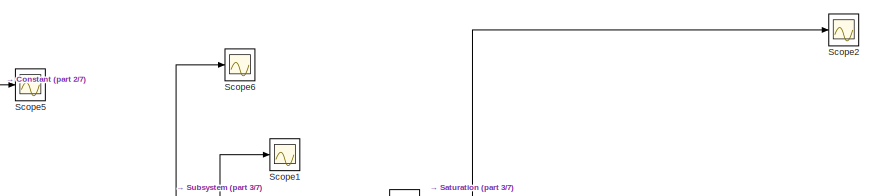
[diagram: root canvas - part 1/7, top right region]
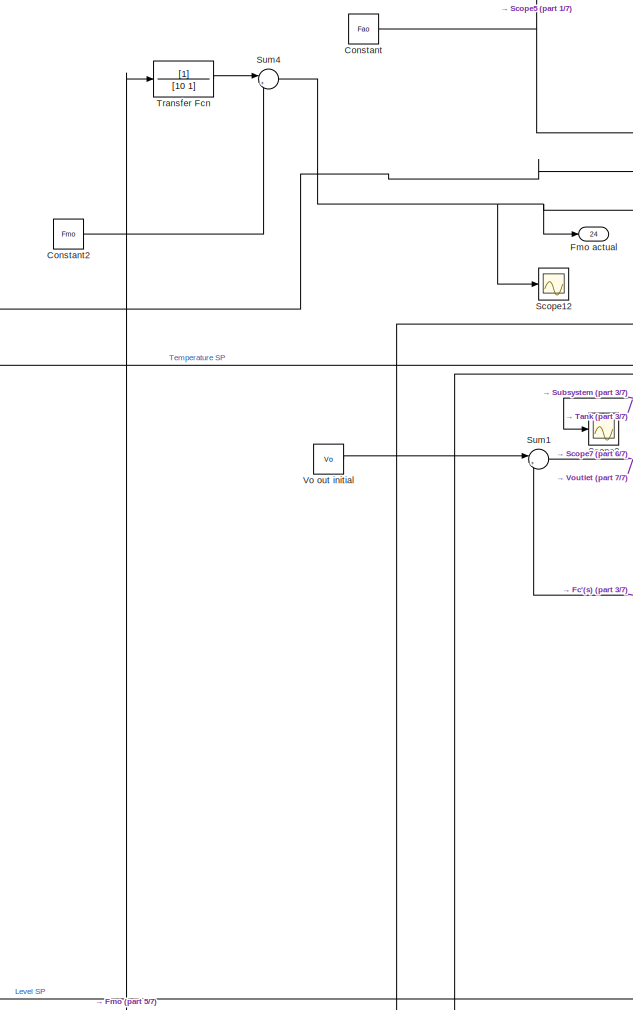
[diagram: root canvas - part 2/7, central region]
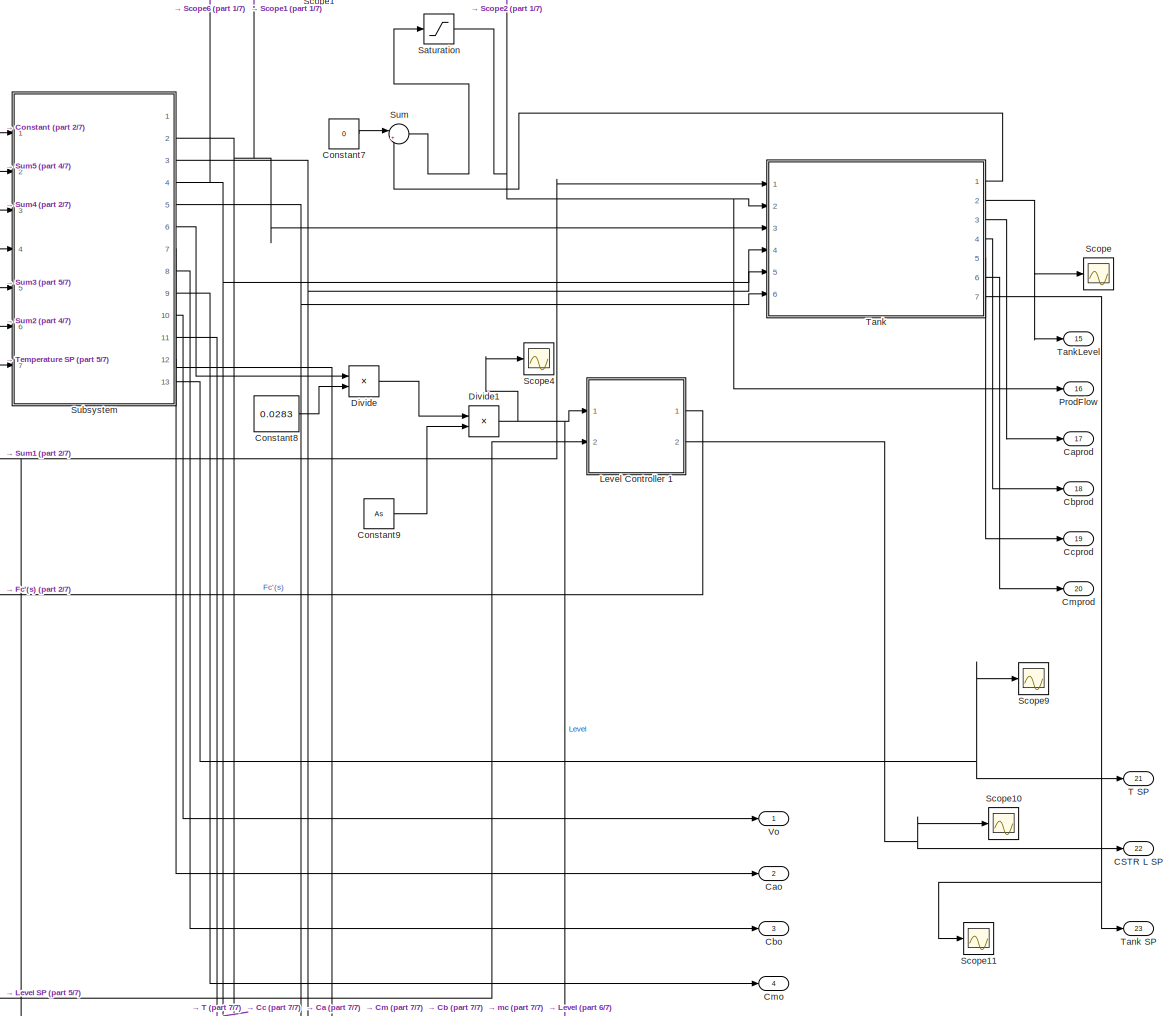
[diagram: root canvas - part 3/7, middle right region]
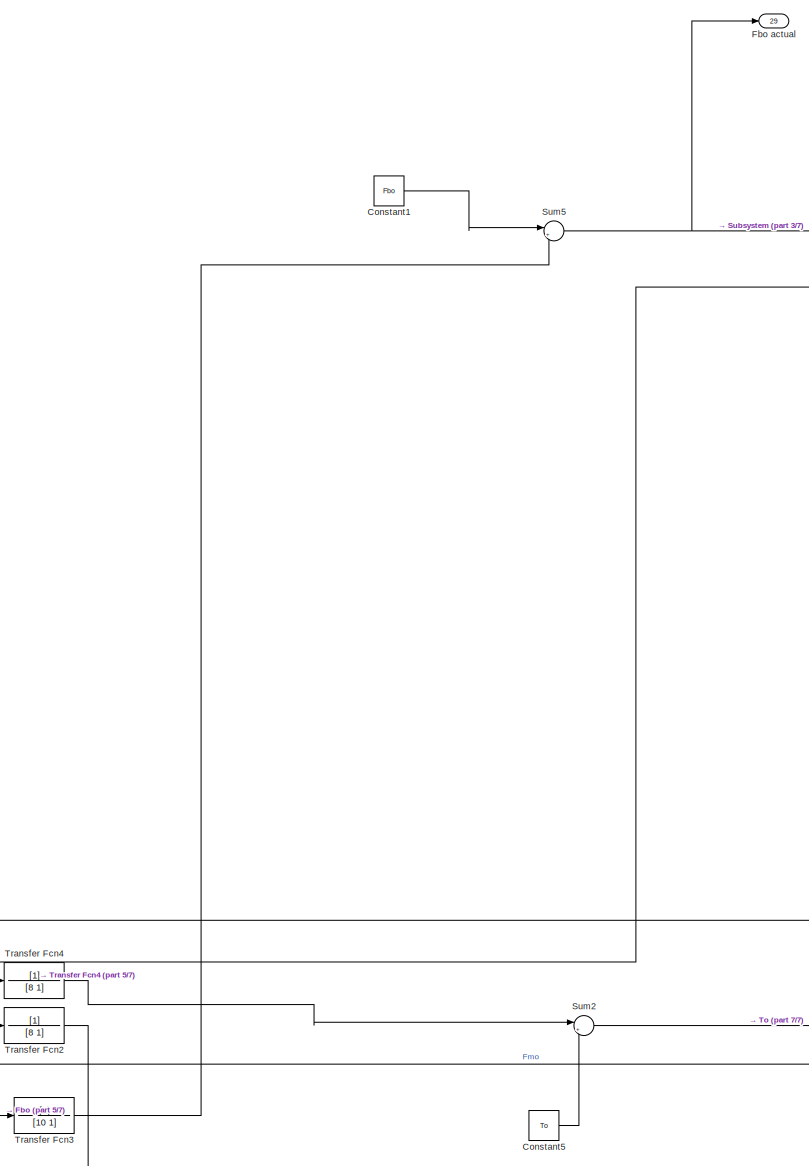
[diagram: root canvas - part 4/7, middle left region]
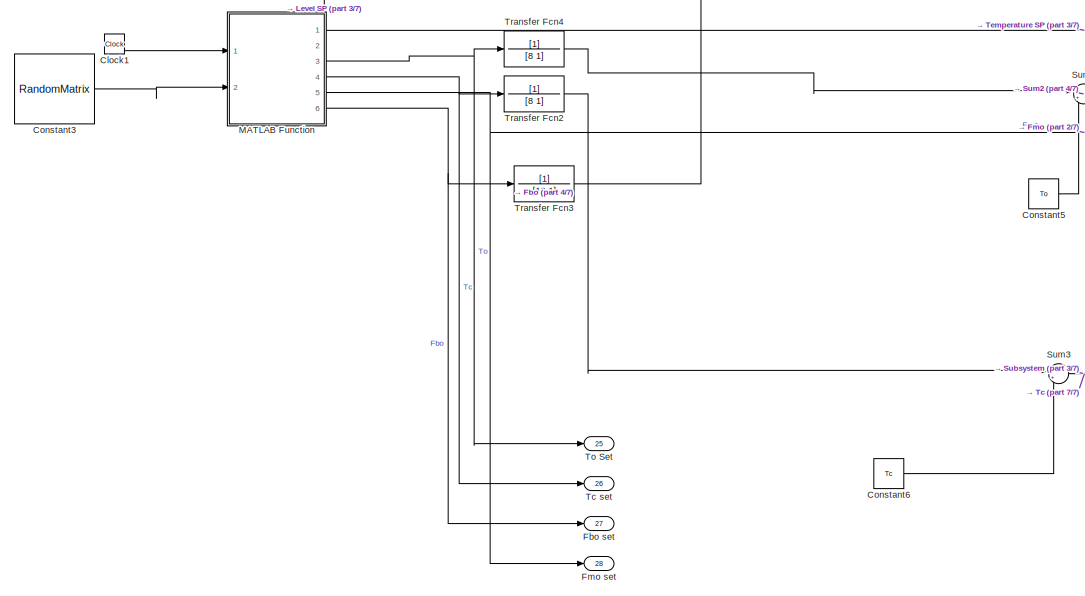
[diagram: root canvas - part 5/7, bottom left region]
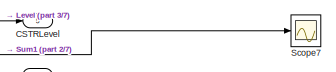
[diagram: root canvas - part 6/7, bottom right region]
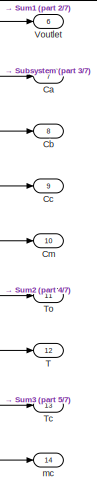
[diagram: root canvas - part 7/7, bottom right region]
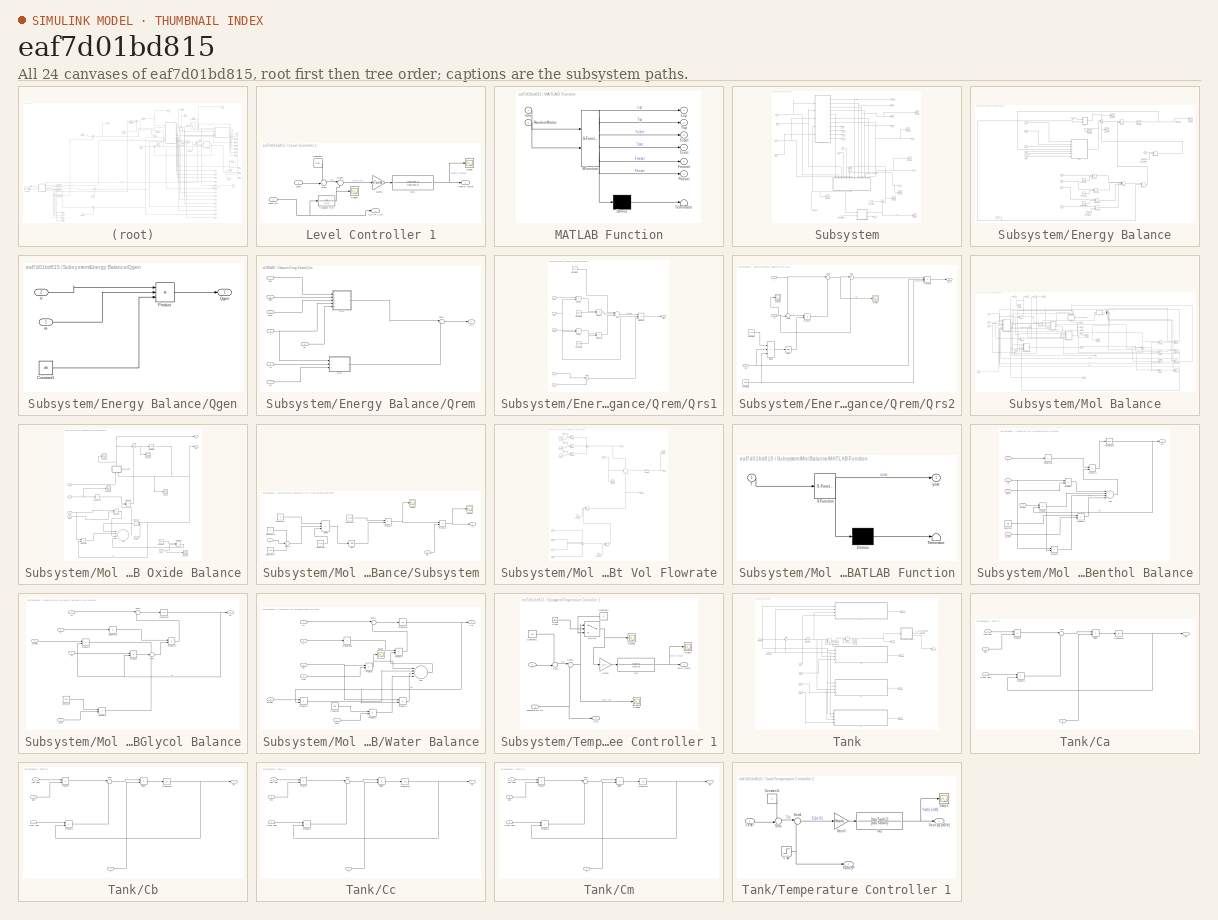
[diagram: thumbnail index - all 24 canvases of the model, root first then tree order]
MODEL slx_eaf7d01bd815
KIND model
CONFIG AbsTol = auto
CONFIG EnableMultiTasking = off
CONFIG FixedStep = 0.1
CONFIG MaxStep = auto
CONFIG MinStep = auto
CONFIG RelTol = 1e-3
CONFIG SampleTimeConstraint = Unconstrained
CONFIG Solver = FixedStepAuto
CONFIG SolverName = FixedStepAuto
CONFIG StartTime = 0.0
CONFIG StopTime = 4000
BLOCK [Outport] CSTR L SP
  IconDisplay = Port number
  Port = 22
BLOCK [Outport] CSTRLevel
  IconDisplay = Port number
  Port = 5
BLOCK [Outport] Ca
  IconDisplay = Port number
  Port = 7
BLOCK [Outport] Cao
  IconDisplay = Port number
  Port = 2
BLOCK [Outport] Caprod
  IconDisplay = Port number
  Port = 17
BLOCK [Outport] Cb
  IconDisplay = Port number
  Port = 8
BLOCK [Outport] Cbo
  IconDisplay = Port number
  Port = 3
BLOCK [Outport] Cbprod
  IconDisplay = Port number
  Port = 18
BLOCK [Outport] Cc
  IconDisplay = Port number
  Port = 9
BLOCK [Outport] Ccprod
  IconDisplay = Port number
  Port = 19
BLOCK [Clock] Clock1
BLOCK [Outport] Cm
  IconDisplay = Port number
  Port = 10
BLOCK [Outport] Cmo
  IconDisplay = Port number
  Port = 4
BLOCK [Outport] Cmprod
  IconDisplay = Port number
  Port = 20
BLOCK [Constant] Constant
  SampleTime = Inf
  Value = Fao
BLOCK [Constant] Constant1
  Value = Fbo
BLOCK [Constant] Constant2
  Value = Fmo
BLOCK [Constant] Constant3
  SampleTime = -1
  Value = RandomMatrix
  VectorParams1D = off
BLOCK [Constant] Constant5
  Value = To
BLOCK [Constant] Constant6
  Value = Tc
BLOCK [Constant] Constant7
  Value = 0
BLOCK [Constant] Constant8
  Value = 0.0283
BLOCK [Constant] Constant9
  Value = As
BLOCK [Product] Divide
  InputSameDT = off
  Inputs = **
  OutDataTypeStr = Inherit: Inherit via internal rule
  Ports = [2, 1]
  RndMeth = Floor
  SaturateOnIntegerOverflow = off
BLOCK [Product] Divide1
  InputSameDT = off
  Inputs = */
  OutDataTypeStr = Inherit: Inherit via internal rule
  Ports = [2, 1]
  RndMeth = Floor
  SaturateOnIntegerOverflow = off
BLOCK [Outport] Fbo actual
  IconDisplay = Port number
  Port = 29
BLOCK [Outport] Fbo set
  IconDisplay = Port number
  Port = 27
BLOCK [Outport] Fmo actual
  IconDisplay = Port number
  Port = 24
BLOCK [Outport] Fmo set
  IconDisplay = Port number
  Port = 28
BLOCK [SubSystem] Level Controller 1
  Ports = [2, 2]
  RequestExecContextInheritance = off
BLOCK [Outport] Level Controller 1/CSTR L SP
  IconDisplay = Port number
  Port = 2
BLOCK [Constant] Level Controller 1/Constant1
  Value = 0.98
BLOCK [Gain] Level Controller 1/Gain5
  Gain = KTank1
  OutDataTypeStr = Inherit: Inherit via internal rule
  ParamDataTypeStr = Inherit: Inherit via internal rule
  SaturateOnIntegerOverflow = off
BLOCK [TransferFcn] Level Controller 1/Gc1
  Denominator = [tauTank 0]
  Numerator = [tauTank 1]
BLOCK [Inport] Level Controller 1/Level
  IconDisplay = Port number
BLOCK [Inport] Level Controller 1/Level SP
  IconDisplay = Port number
  Port = 2
BLOCK [Scope] Level Controller 1/Scope
  Floating = off
  NumInputPorts = 1
  Ports = [1]
  ScopeSpecificationString = Simulink.scopes.TimeScopeBlockCfg('CurrentConfiguration', extmgr.ConfigurationSet(extmgr.Configuration('Core','General UI',true),extmgr.Configuration('Core','Source UI',true),extmgr.Configuration('Sources','WiredSimulink',true,'DataLoggingVariableName','ScopeData4'),extmgr.Configuration('Visuals','Time Domain',true,'SerializedDisplays',{struct('MinYLimReal','-1104.59699','MaxYLimReal','389.81667',...<+1393ch>
BLOCK [Scope] Level Controller 1/Scope1
  Floating = off
  NumInputPorts = 1
  Ports = [1]
  ScopeSpecificationString = Simulink.scopes.TimeScopeBlockCfg('CurrentConfiguration', extmgr.ConfigurationSet(extmgr.Configuration('Core','General UI',true),extmgr.Configuration('Core','Source UI',true),extmgr.Configuration('Sources','WiredSimulink',true,'DataLoggingVariableName','ScopeData1'),extmgr.Configuration('Visuals','Time Domain',true,'SerializedDisplays',{struct('MinYLimReal','-0.11249','MaxYLimReal','0.0125','YLabe...<+1733ch>
BLOCK [Sum] Level Controller 1/Sum
  IconShape = round
  InputSameDT = off
  Inputs = -+|
  OutDataTypeStr = Inherit: Inherit via internal rule
  Ports = [2, 1]
  SaturateOnIntegerOverflow = off
BLOCK [Sum] Level Controller 1/Sum1
  IconShape = round
  InputSameDT = off
  Inputs = |-+
  OutDataTypeStr = Inherit: Inherit via internal rule
  Ports = [2, 1]
  SaturateOnIntegerOverflow = off
BLOCK [TransferFcn] Level Controller 1/Transfer Fcn
  Denominator = [4 1]
BLOCK [Outport] Level Controller 1/Vout'(s) [m3//h]
  IconDisplay = Port number
BLOCK [SubSystem] MATLAB Function
  ErrorFcn = Stateflow.Translate.translate
  PermitHierarchicalResolution = ExplicitOnly
  Ports = [2, 6]
  RequestExecContextInheritance = off
  SFBlockType = MATLAB Function
  TreatAsAtomicUnit = on
BLOCK [Demux] MATLAB Function/ Demux 
  Outputs = 1
  Ports = [1, 1]
BLOCK [S-Function] MATLAB Function/ SFunction 
  EnableBusSupport = on
  FunctionName = sf_sfun
  PortCounts = [2 7]
  Ports = [2, 7]
  SFcnIsStateOwnerBlock = off
  SFunctionDeploymentMode = off
  Tag = Stateflow S-Function PropGlycAdjustedARNoNoiseNew 1
BLOCK [Terminator] MATLAB Function/ Terminator 
BLOCK [Outport] MATLAB Function/Fboset
  IconDisplay = Port number
  Port = 6
BLOCK [Outport] MATLAB Function/Fmoset
  IconDisplay = Port number
  Port = 5
BLOCK [Outport] MATLAB Function/Lsp
  IconDisplay = Port number
BLOCK [Inport] MATLAB Function/RandomMatrix
  IconDisplay = Port number
  Port = 2
BLOCK [Outport] MATLAB Function/Tcset
  IconDisplay = Port number
  Port = 4
BLOCK [Outport] MATLAB Function/ToSet
  IconDisplay = Port number
  Port = 3
BLOCK [Outport] MATLAB Function/Tsp
  IconDisplay = Port number
  Port = 2
BLOCK [Inport] MATLAB Function/time
  IconDisplay = Port number
BLOCK [Outport] ProdFlow
  IconDisplay = Port number
  Port = 16
BLOCK [Saturate] Saturation
  InputPortMap = u0
  LowerLimit = 0
  Ports = [1, 1]
  UpperLimit = inf
BLOCK [Scope] Scope
  Floating = off
  NumInputPorts = 1
  Ports = [1]
  ScopeSpecificationString = Simulink.scopes.TimeScopeBlockCfg('CurrentConfiguration', extmgr.ConfigurationSet(extmgr.Configuration('Core','General UI',true),extmgr.Configuration('Core','Source UI',true),extmgr.Configuration('Sources','WiredSimulink',true,'DataLoggingVariableName','ScopeData1'),extmgr.Configuration('Visuals','Time Domain',true,'SerializedDisplays',{struct('MinYLimReal','-1.17591','MaxYLimReal','10.6','YLabelR...<+1388ch>
BLOCK [Scope] Scope1
  Floating = off
  NumInputPorts = 1
  Ports = [1]
  ScopeSpecificationString = Simulink.scopes.TimeScopeBlockCfg('CurrentConfiguration', extmgr.ConfigurationSet(extmgr.Configuration('Core','General UI',true),extmgr.Configuration('Core','Source UI',true),extmgr.Configuration('Sources','WiredSimulink',true,'DataLoggingVariableName','ScopeData2'),extmgr.Configuration('Visuals','Time Domain',true,'SerializedDisplays',{struct('MinYLimReal','-0.02115','MaxYLimReal','0.19038','YLab...<+1371ch>
BLOCK [Scope] Scope10
  Floating = off
  NumInputPorts = 1
  Ports = [1]
  ScopeSpecificationString = Simulink.scopes.TimeScopeBlockCfg('CurrentConfiguration', extmgr.ConfigurationSet(extmgr.Configuration('Core','General UI',true),extmgr.Configuration('Core','Source UI',true),extmgr.Configuration('Sources','WiredSimulink',true,'DataLoggingVariableName','ScopeData2'),extmgr.Configuration('Visuals','Time Domain',true,'SerializedDisplays',{struct('MinYLimReal','-0.3375','MaxYLimReal','0.0375','YLabel...<+1380ch>
BLOCK [Scope] Scope11
  Floating = off
  NumInputPorts = 1
  Ports = [1]
  ScopeSpecificationString = Simulink.scopes.TimeScopeBlockCfg('CurrentConfiguration', extmgr.ConfigurationSet(extmgr.Configuration('Core','General UI',true),extmgr.Configuration('Core','Source UI',true),extmgr.Configuration('Sources','WiredSimulink',true,'DataLoggingVariableName','ScopeData3'),extmgr.Configuration('Visuals','Time Domain',true,'SerializedDisplays',{struct('MinYLimReal','3.96207','MaxYLimReal','5.96207','YLabe...<+1363ch>
BLOCK [Scope] Scope12
  Floating = off
  NumInputPorts = 1
  Ports = [1]
  ScopeSpecificationString = Simulink.scopes.TimeScopeBlockCfg('CurrentConfiguration', extmgr.ConfigurationSet(extmgr.Configuration('Core','General UI',true),extmgr.Configuration('Core','Source UI',true),extmgr.Configuration('Sources','WiredSimulink',true,'DataLoggingVariableName','ScopeData2'),extmgr.Configuration('Visuals','Time Domain',true,'SerializedDisplays',{struct('MinYLimReal','93.20462','MaxYLimReal','202.49796','YL...<+1697ch>
BLOCK [Scope] Scope2
  Floating = off
  NumInputPorts = 1
  Ports = [1]
  ScopeSpecificationString = Simulink.scopes.TimeScopeBlockCfg('CurrentConfiguration', extmgr.ConfigurationSet(extmgr.Configuration('Core','General UI',true),extmgr.Configuration('Core','Source UI',true),extmgr.Configuration('Sources','WiredSimulink',true,'DataLoggingVariableName','ScopeData1'),extmgr.Configuration('Visuals','Time Domain',true,'SerializedDisplays',{struct('MinYLimReal','-312.20973','MaxYLimReal','2809.88759',...<+1387ch>
BLOCK [Scope] Scope3
  Floating = off
  NumInputPorts = 1
  Ports = [1]
  ScopeSpecificationString = Simulink.scopes.TimeScopeBlockCfg('CurrentConfiguration', extmgr.ConfigurationSet(extmgr.Configuration('Core','General UI',true),extmgr.Configuration('Core','Source UI',true),extmgr.Configuration('Sources','WiredSimulink',true,'DataLoggingVariableName','ScopeData3'),extmgr.Configuration('Visuals','Time Domain',true,'SerializedDisplays',{struct('MinYLimReal','500.64539','MaxYLimReal','512.27644','Y...<+1396ch>
BLOCK [Scope] Scope4
  Floating = off
  NumInputPorts = 1
  Ports = [1]
  ScopeSpecificationString = Simulink.scopes.TimeScopeBlockCfg('CurrentConfiguration', extmgr.ConfigurationSet(extmgr.Configuration('Core','General UI',true),extmgr.Configuration('Core','Source UI',true),extmgr.Configuration('Sources','WiredSimulink',true,'DataLoggingVariableName','ScopeData4'),extmgr.Configuration('Visuals','Time Domain',true,'SerializedDisplays',{struct('MinYLimReal','0.82041','MaxYLimReal','1.14053','YLabe...<+1728ch>
BLOCK [Scope] Scope5
  Floating = off
  NumInputPorts = 1
  Ports = [1]
  ScopeSpecificationString = Simulink.scopes.TimeScopeBlockCfg('CurrentConfiguration', extmgr.ConfigurationSet(extmgr.Configuration('Core','General UI',true),extmgr.Configuration('Core','Source UI',true),extmgr.Configuration('Sources','WiredSimulink',true,'DataLoggingVariableName','ScopeData1'),extmgr.Configuration('Visuals','Time Domain',true,'SerializedDisplays',{struct('MinYLimReal','70.00000','MaxYLimReal','90.00000','YLa...<+1452ch>
BLOCK [Scope] Scope6
  Floating = off
  NumInputPorts = 1
  Ports = [1]
  ScopeSpecificationString = Simulink.scopes.TimeScopeBlockCfg('CurrentConfiguration', extmgr.ConfigurationSet(extmgr.Configuration('Core','General UI',true),extmgr.Configuration('Core','Source UI',true),extmgr.Configuration('Sources','WiredSimulink',true,'DataLoggingVariableName','ScopeData2'),extmgr.Configuration('Visuals','Time Domain',true,'SerializedDisplays',{struct('MinYLimReal','-0.0181','MaxYLimReal','0.16287','YLabe...<+1369ch>
BLOCK [Scope] Scope7
  Floating = off
  NumInputPorts = 1
  Ports = [1]
  ScopeSpecificationString = Simulink.scopes.TimeScopeBlockCfg('CurrentConfiguration', extmgr.ConfigurationSet(extmgr.Configuration('Core','General UI',true),extmgr.Configuration('Core','Source UI',true),extmgr.Configuration('Sources','WiredSimulink',true,'DataLoggingVariableName','ScopeData2'),extmgr.Configuration('Visuals','Time Domain',true,'SerializedDisplays',{struct('MinYLimReal','430.80003','MaxYLimReal','520.02749','Y...<+1410ch>
BLOCK [Scope] Scope9
  Floating = off
  NumInputPorts = 1
  Ports = [1]
  ScopeSpecificationString = Simulink.scopes.TimeScopeBlockCfg('CurrentConfiguration', extmgr.ConfigurationSet(extmgr.Configuration('Core','General UI',true),extmgr.Configuration('Core','Source UI',true),extmgr.Configuration('Sources','WiredSimulink',true,'DataLoggingVariableName','ScopeData1'),extmgr.Configuration('Visuals','Time Domain',true,'SerializedDisplays',{struct('MinYLimReal','-37.5','MaxYLimReal','37.5','YLabelReal...<+1398ch>
BLOCK [SubSystem] Subsystem
  Ports = [7, 13]
  RequestExecContextInheritance = off
BLOCK [Outport] Subsystem/Ca
  IconDisplay = Port number
  Port = 2
BLOCK [Outport] Subsystem/Cao
  IconDisplay = Port number
  Port = 7
BLOCK [Outport] Subsystem/Cb
  IconDisplay = Port number
  Port = 3
BLOCK [Outport] Subsystem/Cbo
  IconDisplay = Port number
  Port = 8
BLOCK [Outport] Subsystem/Cc
  IconDisplay = Port number
  Port = 4
BLOCK [Outport] Subsystem/Cm
  IconDisplay = Port number
  Port = 5
BLOCK [Outport] Subsystem/Cmo
  IconDisplay = Port number
  Port = 9
BLOCK [Constant] Subsystem/Constant1
  Value = mc
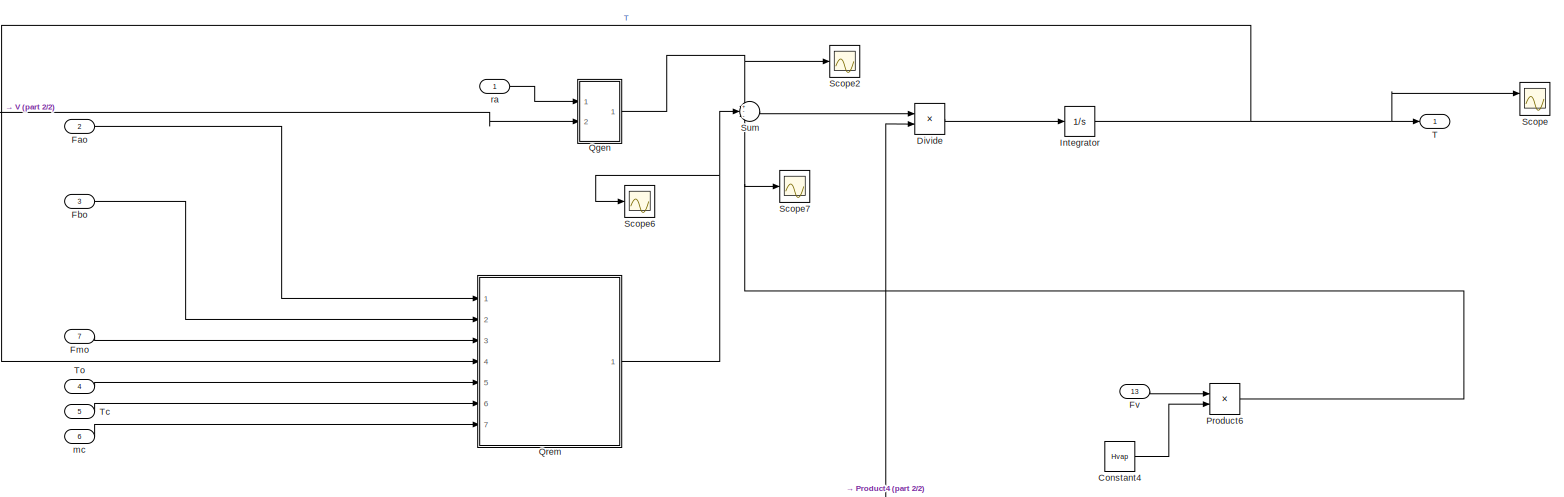
[diagram: Subsystem/Energy Balance - part 1/2, full width, top band]
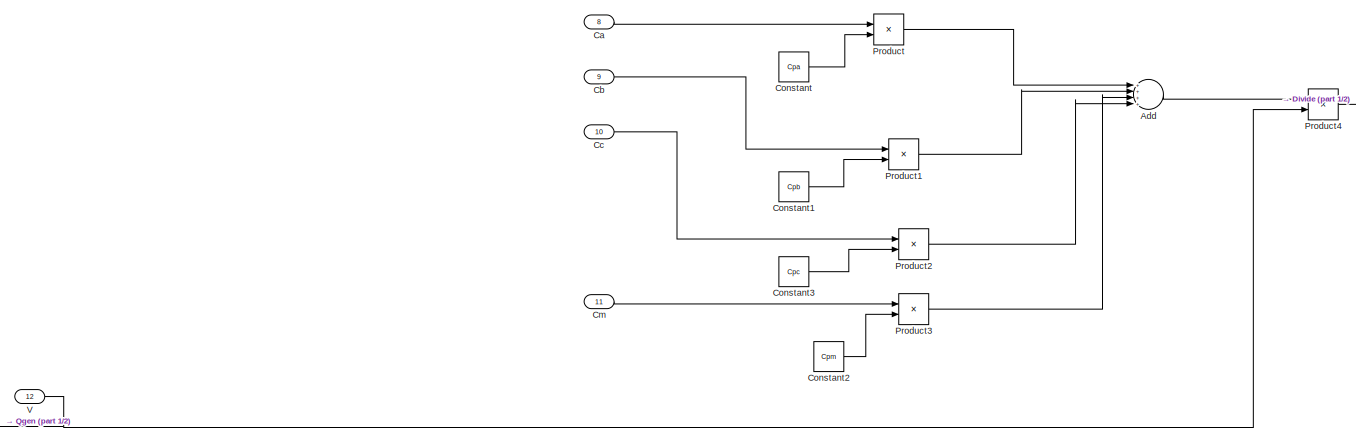
[diagram: Subsystem/Energy Balance - part 2/2, bottom center region]
BLOCK [SubSystem] Subsystem/Energy Balance
  Ports = [13, 1]
  RequestExecContextInheritance = off
BLOCK [Sum] Subsystem/Energy Balance/Add
  InputSameDT = off
  Inputs = ++++
  OutDataTypeStr = Inherit: Inherit via internal rule
  Ports = [4, 1]
  SaturateOnIntegerOverflow = off
BLOCK [Inport] Subsystem/Energy Balance/Ca
  IconDisplay = Port number
  Port = 8
BLOCK [Inport] Subsystem/Energy Balance/Cb
  IconDisplay = Port number
  Port = 9
BLOCK [Inport] Subsystem/Energy Balance/Cc
  IconDisplay = Port number
  Port = 10
BLOCK [Inport] Subsystem/Energy Balance/Cm
  IconDisplay = Port number
  Port = 11
BLOCK [Constant] Subsystem/Energy Balance/Constant
  Value = Cpa
BLOCK [Constant] Subsystem/Energy Balance/Constant1
  Value = Cpb
BLOCK [Constant] Subsystem/Energy Balance/Constant2
  Value = Cpm
BLOCK [Constant] Subsystem/Energy Balance/Constant3
  Value = Cpc
BLOCK [Constant] Subsystem/Energy Balance/Constant4
  Value = Hvap
BLOCK [Product] Subsystem/Energy Balance/Divide
  InputSameDT = off
  Inputs = */
  OutDataTypeStr = Inherit: Inherit via internal rule
  Ports = [2, 1]
  RndMeth = Floor
  SaturateOnIntegerOverflow = off
BLOCK [Inport] Subsystem/Energy Balance/Fao
  IconDisplay = Port number
  Port = 2
BLOCK [Inport] Subsystem/Energy Balance/Fbo
  IconDisplay = Port number
  Port = 3
BLOCK [Inport] Subsystem/Energy Balance/Fmo
  IconDisplay = Port number
  Port = 7
BLOCK [Inport] Subsystem/Energy Balance/Fv 
  IconDisplay = Port number
  Port = 13
BLOCK [Integrator] Subsystem/Energy Balance/Integrator
  InitialCondition = To
  Ports = [1, 1]
  UpperSaturationLimit = Tb+0.5
BLOCK [Product] Subsystem/Energy Balance/Product
  InputSameDT = off
  OutDataTypeStr = Inherit: Inherit via internal rule
  Ports = [2, 1]
  RndMeth = Floor
  SaturateOnIntegerOverflow = off
BLOCK [Product] Subsystem/Energy Balance/Product1
  InputSameDT = off
  OutDataTypeStr = Inherit: Inherit via internal rule
  Ports = [2, 1]
  RndMeth = Floor
  SaturateOnIntegerOverflow = off
BLOCK [Product] Subsystem/Energy Balance/Product2
  InputSameDT = off
  OutDataTypeStr = Inherit: Inherit via internal rule
  Ports = [2, 1]
  RndMeth = Floor
  SaturateOnIntegerOverflow = off
BLOCK [Product] Subsystem/Energy Balance/Product3
  InputSameDT = off
  OutDataTypeStr = Inherit: Inherit via internal rule
  Ports = [2, 1]
  RndMeth = Floor
  SaturateOnIntegerOverflow = off
BLOCK [Product] Subsystem/Energy Balance/Product4
  InputSameDT = off
  OutDataTypeStr = Inherit: Inherit via internal rule
  Ports = [2, 1]
  RndMeth = Floor
  SaturateOnIntegerOverflow = off
BLOCK [Product] Subsystem/Energy Balance/Product6
  InputSameDT = off
  OutDataTypeStr = Inherit: Inherit via internal rule
  Ports = [2, 1]
  RndMeth = Floor
  SaturateOnIntegerOverflow = off
BLOCK [SubSystem] Subsystem/Energy Balance/Qgen
  Ports = [2, 1]
  RequestExecContextInheritance = off
BLOCK [Constant] Subsystem/Energy Balance/Qgen/Constant1
  Value = dh
BLOCK [Product] Subsystem/Energy Balance/Qgen/Product
  InputSameDT = off
  Inputs = 3
  OutDataTypeStr = Inherit: Inherit via internal rule
  Ports = [3, 1]
  RndMeth = Floor
  SaturateOnIntegerOverflow = off
BLOCK [Outport] Subsystem/Energy Balance/Qgen/Qgen
  IconDisplay = Port number
BLOCK [Inport] Subsystem/Energy Balance/Qgen/V
  IconDisplay = Port number
  Port = 2
BLOCK [Inport] Subsystem/Energy Balance/Qgen/ra
  IconDisplay = Port number
BLOCK [SubSystem] Subsystem/Energy Balance/Qrem
  Ports = [7, 1]
  RequestExecContextInheritance = off
BLOCK [Inport] Subsystem/Energy Balance/Qrem/Fao
  IconDisplay = Port number
BLOCK [Inport] Subsystem/Energy Balance/Qrem/Fbo
  IconDisplay = Port number
  Port = 2
BLOCK [Inport] Subsystem/Energy Balance/Qrem/Fmo
  IconDisplay = Port number
  Port = 3
BLOCK [Outport] Subsystem/Energy Balance/Qrem/Qrs
  IconDisplay = Port number
BLOCK [SubSystem] Subsystem/Energy Balance/Qrem/Qrs1
  Ports = [5, 1]
  RequestExecContextInheritance = off
BLOCK [Sum] Subsystem/Energy Balance/Qrem/Qrs1/Add
  InputSameDT = off
  Inputs = +++
  OutDataTypeStr = Inherit: Inherit via internal rule
  Ports = [3, 1]
  SaturateOnIntegerOverflow = off
BLOCK [Constant] Subsystem/Energy Balance/Qrem/Qrs1/Constant
  Value = Cpa
BLOCK [Constant] Subsystem/Energy Balance/Qrem/Qrs1/Constant1
  Value = Cpb
BLOCK [Constant] Subsystem/Energy Balance/Qrem/Qrs1/Constant2
  Value = Cpm
BLOCK [Product] Subsystem/Energy Balance/Qrem/Qrs1/Divide
  InputSameDT = off
  Inputs = */
  OutDataTypeStr = Inherit: Inherit via internal rule
  Ports = [2, 1]
  RndMeth = Floor
  SaturateOnIntegerOverflow = off
BLOCK [Product] Subsystem/Energy Balance/Qrem/Qrs1/Divide1
  InputSameDT = off
  Inputs = */
  OutDataTypeStr = Inherit: Inherit via internal rule
  Ports = [2, 1]
  RndMeth = Floor
  SaturateOnIntegerOverflow = off
BLOCK [Inport] Subsystem/Energy Balance/Qrem/Qrs1/Fao
  IconDisplay = Port number
BLOCK [Inport] Subsystem/Energy Balance/Qrem/Qrs1/Fbo
  IconDisplay = Port number
  Port = 2
BLOCK [Inport] Subsystem/Energy Balance/Qrem/Qrs1/Fmo
  IconDisplay = Port number
  Port = 3
BLOCK [Product] Subsystem/Energy Balance/Qrem/Qrs1/Product
  InputSameDT = off
  OutDataTypeStr = Inherit: Inherit via internal rule
  Ports = [2, 1]
  RndMeth = Floor
  SaturateOnIntegerOverflow = off
BLOCK [Product] Subsystem/Energy Balance/Qrem/Qrs1/Product1
  InputSameDT = off
  OutDataTypeStr = Inherit: Inherit via internal rule
  Ports = [2, 1]
  RndMeth = Floor
  SaturateOnIntegerOverflow = off
BLOCK [Product] Subsystem/Energy Balance/Qrem/Qrs1/Product2
  InputSameDT = off
  Inputs = 3
  OutDataTypeStr = Inherit: Inherit via internal rule
  Ports = [3, 1]
  RndMeth = Floor
  SaturateOnIntegerOverflow = off
BLOCK [Outport] Subsystem/Energy Balance/Qrem/Qrs1/Qrs1
  IconDisplay = Port number
BLOCK [Sum] Subsystem/Energy Balance/Qrem/Qrs1/Sum
  IconShape = round
  InputSameDT = off
  Inputs = |+-
  OutDataTypeStr = Inherit: Inherit via internal rule
  Ports = [2, 1]
  SaturateOnIntegerOverflow = off
BLOCK [Inport] Subsystem/Energy Balance/Qrem/Qrs1/T
  IconDisplay = Port number
  Port = 4
BLOCK [Inport] Subsystem/Energy Balance/Qrem/Qrs1/To
  IconDisplay = Port number
  Port = 5
BLOCK [SubSystem] Subsystem/Energy Balance/Qrem/Qrs2
  Ports = [3, 1]
  RequestExecContextInheritance = off
BLOCK [Constant] Subsystem/Energy Balance/Qrem/Qrs2/Constant
  Value = -1*UA
BLOCK [Constant] Subsystem/Energy Balance/Qrem/Qrs2/Constant1
  Value = Cpw
BLOCK [Product] Subsystem/Energy Balance/Qrem/Qrs2/Divide
  InputSameDT = off
  Inputs = *//
  OutDataTypeStr = Inherit: Inherit via internal rule
  Ports = [3, 1]
  RndMeth = Floor
  SaturateOnIntegerOverflow = off
BLOCK [Math] Subsystem/Energy Balance/Qrem/Qrs2/Exp
  Ports = [1, 1]
BLOCK [Product] Subsystem/Energy Balance/Qrem/Qrs2/Product
  InputSameDT = off
  OutDataTypeStr = Inherit: Inherit via internal rule
  Ports = [2, 1]
  RndMeth = Floor
  SaturateOnIntegerOverflow = off
BLOCK [Product] Subsystem/Energy Balance/Qrem/Qrs2/Product1
  InputSameDT = off
  Inputs = 3
  OutDataTypeStr = Inherit: Inherit via internal rule
  Ports = [3, 1]
  RndMeth = Floor
  SaturateOnIntegerOverflow = off
BLOCK [Outport] Subsystem/Energy Balance/Qrem/Qrs2/Qrs2
  IconDisplay = Port number
BLOCK [Scope] Subsystem/Energy Balance/Qrem/Qrs2/Scope
  Floating = off
  NumInputPorts = 1
  Ports = [1]
  ScopeSpecificationString = Simulink.scopes.TimeScopeBlockCfg('CurrentConfiguration', extmgr.ConfigurationSet(extmgr.Configuration('Core','General UI',true),extmgr.Configuration('Core','Source UI',true),extmgr.Configuration('Sources','WiredSimulink',true,'DataLoggingVariableName','ScopeData5'),extmgr.Configuration('Visuals','Time Domain',true,'SerializedDisplays',{struct('MinYLimReal','62.62177','MaxYLimReal','119.37209','YL...<+1684ch>
BLOCK [Scope] Subsystem/Energy Balance/Qrem/Qrs2/Scope1
  Floating = off
  NumInputPorts = 1
  Ports = [1]
  ScopeSpecificationString = Simulink.scopes.TimeScopeBlockCfg('CurrentConfiguration', extmgr.ConfigurationSet(extmgr.Configuration('Core','General UI',true),extmgr.Configuration('Core','Source UI',true),extmgr.Configuration('Sources','WiredSimulink',true,'DataLoggingVariableName','ScopeData6'),extmgr.Configuration('Visuals','Time Domain',true,'SerializedDisplays',{struct('MinYLimReal','50.00000','MaxYLimReal','70.00000','YLa...<+1367ch>
BLOCK [Sum] Subsystem/Energy Balance/Qrem/Qrs2/Sum
  IconShape = round
  InputSameDT = off
  Inputs = |+-
  OutDataTypeStr = Inherit: Inherit via internal rule
  Ports = [2, 1]
  SaturateOnIntegerOverflow = off
BLOCK [Sum] Subsystem/Energy Balance/Qrem/Qrs2/Sum1
  IconShape = round
  InputSameDT = off
  Inputs = |+-
  OutDataTypeStr = Inherit: Inherit via internal rule
  Ports = [2, 1]
  SaturateOnIntegerOverflow = off
BLOCK [Sum] Subsystem/Energy Balance/Qrem/Qrs2/Sum2
  IconShape = round
  InputSameDT = off
  Inputs = +-|
  OutDataTypeStr = Inherit: Inherit via internal rule
  Ports = [2, 1]
  SaturateOnIntegerOverflow = off
BLOCK [Inport] Subsystem/Energy Balance/Qrem/Qrs2/T
  IconDisplay = Port number
BLOCK [Inport] Subsystem/Energy Balance/Qrem/Qrs2/Tc
  IconDisplay = Port number
  Port = 2
BLOCK [Inport] Subsystem/Energy Balance/Qrem/Qrs2/mc
  IconDisplay = Port number
  Port = 3
BLOCK [Sum] Subsystem/Energy Balance/Qrem/Sum1
  IconShape = round
  InputSameDT = off
  Inputs = |++
  OutDataTypeStr = Inherit: Inherit via internal rule
  Ports = [2, 1]
  SaturateOnIntegerOverflow = off
BLOCK [Inport] Subsystem/Energy Balance/Qrem/T
  IconDisplay = Port number
  Port = 4
BLOCK [Inport] Subsystem/Energy Balance/Qrem/Tc
  IconDisplay = Port number
  Port = 6
BLOCK [Inport] Subsystem/Energy Balance/Qrem/To
  IconDisplay = Port number
  Port = 5
BLOCK [Inport] Subsystem/Energy Balance/Qrem/mc
  IconDisplay = Port number
  Port = 7
BLOCK [Scope] Subsystem/Energy Balance/Scope
  Floating = off
  NumInputPorts = 2
  Ports = [2]
  ScopeSpecificationString = Simulink.scopes.TimeScopeBlockCfg('CurrentConfiguration', extmgr.ConfigurationSet(extmgr.Configuration('Core','General UI',true),extmgr.Configuration('Core','Source UI',true),extmgr.Configuration('Sources','WiredSimulink',true,'DataLoggingVariableName','ScopeData3'),extmgr.Configuration('Visuals','Time Domain',true,'SerializedDisplays',{struct('MinYLimReal','55.06902','MaxYLimReal','241.27585','YL...<+1406ch>
BLOCK [Scope] Subsystem/Energy Balance/Scope2
  Floating = off
  NumInputPorts = 1
  Ports = [1]
  ScopeSpecificationString = Simulink.scopes.TimeScopeBlockCfg('CurrentConfiguration', extmgr.ConfigurationSet(extmgr.Configuration('Core','General UI',true),extmgr.Configuration('Core','Source UI',true),extmgr.Configuration('Sources','WiredSimulink',true,'DataLoggingVariableName','ScopeData9'),extmgr.Configuration('Visuals','Time Domain',true,'SerializedDisplays',{struct('MinYLimReal','-289668.88672','MaxYLimReal','2607019.9...<+1405ch>
BLOCK [Scope] Subsystem/Energy Balance/Scope6
  Floating = off
  NumInputPorts = 1
  Ports = [1]
  ScopeSpecificationString = Simulink.scopes.TimeScopeBlockCfg('CurrentConfiguration', extmgr.ConfigurationSet(extmgr.Configuration('Core','General UI',true),extmgr.Configuration('Core','Source UI',true),extmgr.Configuration('Sources','WiredSimulink',true,'DataLoggingVariableName','ScopeData5'),extmgr.Configuration('Visuals','Time Domain',true,'SerializedDisplays',{struct('MinYLimReal','-148956.716','MaxYLimReal','2495075.906...<+1432ch>
BLOCK [Scope] Subsystem/Energy Balance/Scope7
  Floating = off
  NumInputPorts = 1
  Ports = [1]
  ScopeSpecificationString = Simulink.scopes.TimeScopeBlockCfg('CurrentConfiguration', extmgr.ConfigurationSet(extmgr.Configuration('Core','General UI',true),extmgr.Configuration('Core','Source UI',true),extmgr.Configuration('Sources','WiredSimulink',true,'DataLoggingVariableName','ScopeData6'),extmgr.Configuration('Visuals','Time Domain',true,'SerializedDisplays',{struct('MinYLimReal','-10506.65991','MaxYLimReal','94559.9392...<+1426ch>
BLOCK [Sum] Subsystem/Energy Balance/Sum
  IconShape = round
  InputSameDT = off
  Inputs = +--
  OutDataTypeStr = Inherit: Inherit via internal rule
  Ports = [3, 1]
  SaturateOnIntegerOverflow = off
BLOCK [Outport] Subsystem/Energy Balance/T
  IconDisplay = Port number
BLOCK [Inport] Subsystem/Energy Balance/Tc
  IconDisplay = Port number
  Port = 5
BLOCK [Inport] Subsystem/Energy Balance/To
  IconDisplay = Port number
  Port = 4
BLOCK [Inport] Subsystem/Energy Balance/V
  IconDisplay = Port number
  Port = 12
BLOCK [Inport] Subsystem/Energy Balance/mc
  IconDisplay = Port number
  Port = 6
BLOCK [Inport] Subsystem/Energy Balance/ra
  IconDisplay = Port number
BLOCK [Inport] Subsystem/Fao
  IconDisplay = Port number
BLOCK [Inport] Subsystem/Fbo
  IconDisplay = Port number
  Port = 2
BLOCK [Inport] Subsystem/Fmo
  IconDisplay = Port number
  Port = 3
BLOCK [Outport] Subsystem/Fv
  IconDisplay = Port number
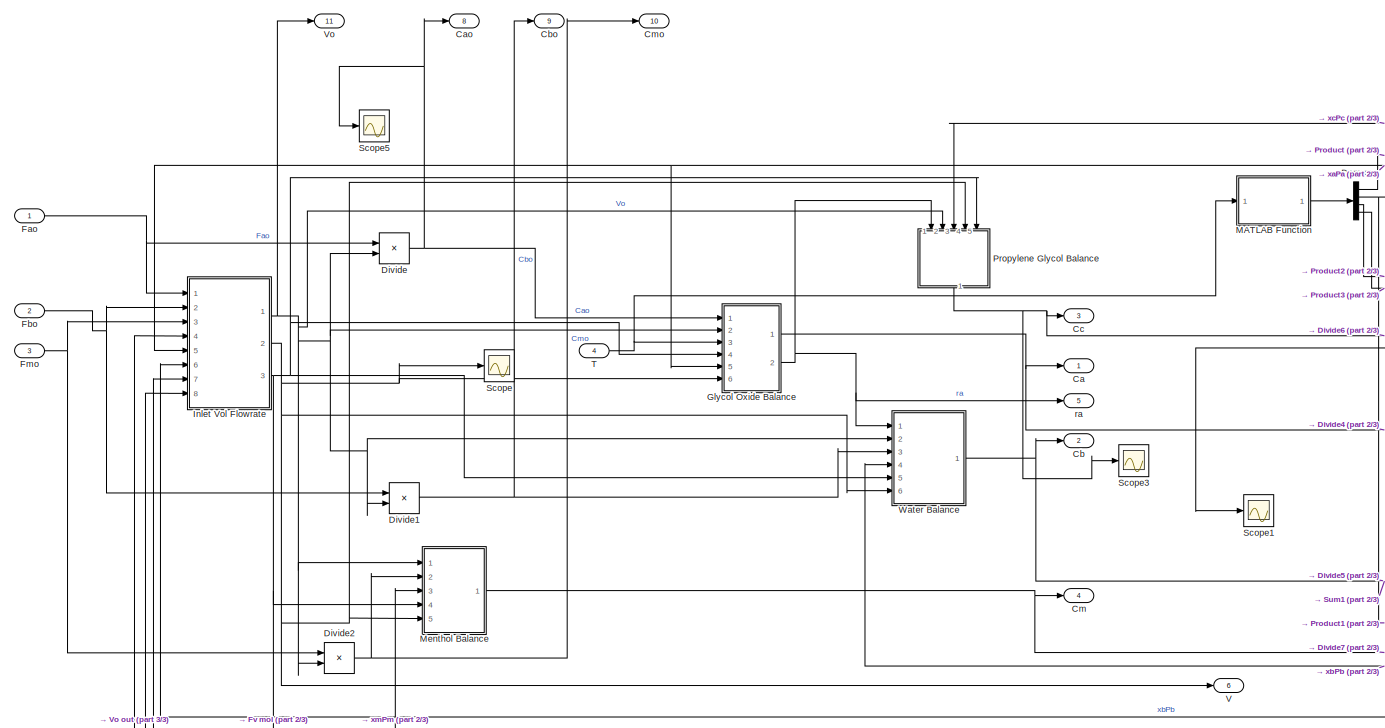
[diagram: Subsystem/Mol Balance - part 1/3, middle left region]
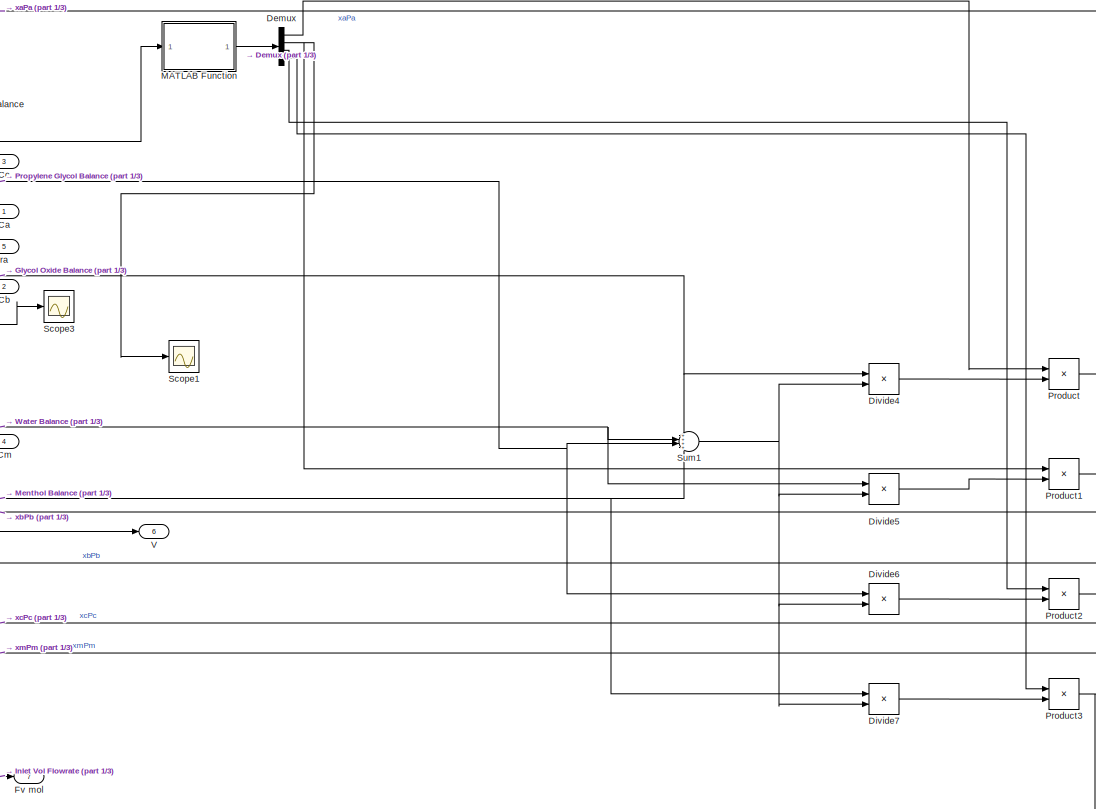
[diagram: Subsystem/Mol Balance - part 2/3, middle right region]
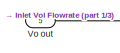
[diagram: Subsystem/Mol Balance - part 3/3, bottom left region]
BLOCK [SubSystem] Subsystem/Mol Balance
  Ports = [5, 11]
  RequestExecContextInheritance = off
BLOCK [Outport] Subsystem/Mol Balance/Ca
  IconDisplay = Port number
BLOCK [Outport] Subsystem/Mol Balance/Cao
  IconDisplay = Port number
  Port = 8
BLOCK [Outport] Subsystem/Mol Balance/Cb
  IconDisplay = Port number
  Port = 2
BLOCK [Outport] Subsystem/Mol Balance/Cbo
  IconDisplay = Port number
  Port = 9
BLOCK [Outport] Subsystem/Mol Balance/Cc
  IconDisplay = Port number
  Port = 3
BLOCK [Outport] Subsystem/Mol Balance/Cm
  IconDisplay = Port number
  Port = 4
BLOCK [Outport] Subsystem/Mol Balance/Cmo
  IconDisplay = Port number
  Port = 10
BLOCK [Demux] Subsystem/Mol Balance/Demux
  DisplayOption = bar
  Ports = [1, 4]
BLOCK [Product] Subsystem/Mol Balance/Divide
  InputSameDT = off
  Inputs = */
  OutDataTypeStr = Inherit: Inherit via internal rule
  Ports = [2, 1]
  RndMeth = Floor
  SaturateOnIntegerOverflow = off
BLOCK [Product] Subsystem/Mol Balance/Divide1
  InputSameDT = off
  Inputs = */
  OutDataTypeStr = Inherit: Inherit via internal rule
  Ports = [2, 1]
  RndMeth = Floor
  SaturateOnIntegerOverflow = off
BLOCK [Product] Subsystem/Mol Balance/Divide2
  InputSameDT = off
  Inputs = */
  OutDataTypeStr = Inherit: Inherit via internal rule
  Ports = [2, 1]
  RndMeth = Floor
  SaturateOnIntegerOverflow = off
BLOCK [Product] Subsystem/Mol Balance/Divide4
  InputSameDT = off
  Inputs = */
  OutDataTypeStr = Inherit: Inherit via internal rule
  Ports = [2, 1]
  RndMeth = Floor
  SaturateOnIntegerOverflow = off
BLOCK [Product] Subsystem/Mol Balance/Divide5
  InputSameDT = off
  Inputs = */
  OutDataTypeStr = Inherit: Inherit via internal rule
  Ports = [2, 1]
  RndMeth = Floor
  SaturateOnIntegerOverflow = off
BLOCK [Product] Subsystem/Mol Balance/Divide6
  InputSameDT = off
  Inputs = */
  OutDataTypeStr = Inherit: Inherit via internal rule
  Ports = [2, 1]
  RndMeth = Floor
  SaturateOnIntegerOverflow = off
BLOCK [Product] Subsystem/Mol Balance/Divide7
  InputSameDT = off
  Inputs = */
  OutDataTypeStr = Inherit: Inherit via internal rule
  Ports = [2, 1]
  RndMeth = Floor
  SaturateOnIntegerOverflow = off
BLOCK [Inport] Subsystem/Mol Balance/Fao
  IconDisplay = Port number
BLOCK [Inport] Subsystem/Mol Balance/Fbo
  IconDisplay = Port number
  Port = 2
BLOCK [Inport] Subsystem/Mol Balance/Fmo
  IconDisplay = Port number
  Port = 3
BLOCK [Outport] Subsystem/Mol Balance/Fv mol
  IconDisplay = Port number
  Port = 7
BLOCK [SubSystem] Subsystem/Mol Balance/Glycol Oxide Balance
  Ports = [6, 2]
  RequestExecContextInheritance = off
BLOCK [Sum] Subsystem/Mol Balance/Glycol Oxide Balance/Add
  InputSameDT = off
  Inputs = +-+-
  OutDataTypeStr = Inherit: Inherit via internal rule
  Ports = [4, 1]
  SaturateOnIntegerOverflow = off
BLOCK [Outport] Subsystem/Mol Balance/Glycol Oxide Balance/Ca
  IconDisplay = Port number
BLOCK [Inport] Subsystem/Mol Balance/Glycol Oxide Balance/Cao
  IconDisplay = Port number
BLOCK [Constant] Subsystem/Mol Balance/Glycol Oxide Balance/Constant
  Value = Kla
BLOCK [Integrator] Subsystem/Mol Balance/Glycol Oxide Balance/Integrator
  LimitOutput = on
  LowerSaturationLimit = 0
  Ports = [1, 1]
BLOCK [Product] Subsystem/Mol Balance/Glycol Oxide Balance/Product
  InputSameDT = off
  OutDataTypeStr = Inherit: Inherit via internal rule
  Ports = [2, 1]
  RndMeth = Floor
  SaturateOnIntegerOverflow = off
BLOCK [Product] Subsystem/Mol Balance/Glycol Oxide Balance/Product1
  InputSameDT = off
  OutDataTypeStr = Inherit: Inherit via internal rule
  Ports = [2, 1]
  RndMeth = Floor
  SaturateOnIntegerOverflow = off
BLOCK [Product] Subsystem/Mol Balance/Glycol Oxide Balance/Product2
  InputSameDT = off
  OutDataTypeStr = Inherit: Inherit via internal rule
  Ports = [2, 1]
  RndMeth = Floor
  SaturateOnIntegerOverflow = off
BLOCK [Product] Subsystem/Mol Balance/Glycol Oxide Balance/Product3
  InputSameDT = off
  OutDataTypeStr = Inherit: Inherit via internal rule
  Ports = [2, 1]
  RndMeth = Floor
  SaturateOnIntegerOverflow = off
BLOCK [Product] Subsystem/Mol Balance/Glycol Oxide Balance/Product4
  InputSameDT = off
  OutDataTypeStr = Inherit: Inherit via internal rule
  Ports = [2, 1]
  RndMeth = Floor
  SaturateOnIntegerOverflow = off
BLOCK [Product] Subsystem/Mol Balance/Glycol Oxide Balance/Reciprocal
  InputSameDT = off
  Inputs = /
  OutDataTypeStr = Inherit: Inherit via internal rule
  Ports = [1, 1]
  RndMeth = Floor
  SaturateOnIntegerOverflow = off
BLOCK [Scope] Subsystem/Mol Balance/Glycol Oxide Balance/Scope
  Floating = off
  NumInputPorts = 1
  Ports = [1]
  ScopeSpecificationString = Simulink.scopes.TimeScopeBlockCfg('CurrentConfiguration', extmgr.ConfigurationSet(extmgr.Configuration('Core','General UI',true),extmgr.Configuration('Core','Source UI',true),extmgr.Configuration('Sources','WiredSimulink',true,'DataLoggingVariableName','ScopeData1'),extmgr.Configuration('Visuals','Time Domain',true,'SerializedDisplays',{struct('MinYLimReal','-0.01695','MaxYLimReal','0.15256','YLab...<+1361ch>
BLOCK [Scope] Subsystem/Mol Balance/Glycol Oxide Balance/Scope1
  Floating = off
  NumInputPorts = 1
  Ports = [1]
  ScopeSpecificationString = Simulink.scopes.TimeScopeBlockCfg('CurrentConfiguration', extmgr.ConfigurationSet(extmgr.Configuration('Core','General UI',true),extmgr.Configuration('Core','Source UI',true),extmgr.Configuration('Sources','WiredSimulink',true,'DataLoggingVariableName','ScopeData3'),extmgr.Configuration('Visuals','Time Domain',true,'SerializedDisplays',{struct('MinYLimReal','56.80919','MaxYLimReal','76.80919','YLa...<+1366ch>
BLOCK [Scope] Subsystem/Mol Balance/Glycol Oxide Balance/Scope2
  Floating = off
  NumInputPorts = 1
  Ports = [1]
  ScopeSpecificationString = Simulink.scopes.TimeScopeBlockCfg('CurrentConfiguration', extmgr.ConfigurationSet(extmgr.Configuration('Core','General UI',true),extmgr.Configuration('Core','Source UI',true),extmgr.Configuration('Sources','WiredSimulink',true,'DataLoggingVariableName','ScopeData6'),extmgr.Configuration('Visuals','Time Domain',true,'SerializedDisplays',{struct('MinYLimReal','0.00425','MaxYLimReal','1.33002','YLabe...<+1361ch>
BLOCK [Scope] Subsystem/Mol Balance/Glycol Oxide Balance/Scope3
  Floating = off
  NumInputPorts = 1
  Ports = [1]
  ScopeSpecificationString = Simulink.scopes.TimeScopeBlockCfg('CurrentConfiguration', extmgr.ConfigurationSet(extmgr.Configuration('Core','General UI',true),extmgr.Configuration('Core','Source UI',true),extmgr.Configuration('Sources','WiredSimulink',true,'DataLoggingVariableName','ScopeData5'),extmgr.Configuration('Visuals','Time Domain',true),extmgr.Configuration('Tools','Plot Navigation',true),extmgr.Configuration('Tools',...<+40ch>
BLOCK [Scope] Subsystem/Mol Balance/Glycol Oxide Balance/Scope4
  Floating = off
  NumInputPorts = 1
  Ports = [1]
  ScopeSpecificationString = Simulink.scopes.TimeScopeBlockCfg('CurrentConfiguration', extmgr.ConfigurationSet(extmgr.Configuration('Core','General UI',true),extmgr.Configuration('Core','Source UI',true),extmgr.Configuration('Sources','WiredSimulink',true,'DataLoggingVariableName','ScopeData6'),extmgr.Configuration('Visuals','Time Domain',true,'SerializedDisplays',{struct('MinYLimReal','0.25702','MaxYLimReal','0.71818','YLabe...<+1359ch>
BLOCK [SubSystem] Subsystem/Mol Balance/Glycol Oxide Balance/Subsystem
  Ports = [2, 1]
  RequestExecContextInheritance = off
BLOCK [Inport] Subsystem/Mol Balance/Glycol Oxide Balance/Subsystem/Ca
  IconDisplay = Port number
  Port = 2
BLOCK [Constant] Subsystem/Mol Balance/Glycol Oxide Balance/Subsystem/Constant1
  Value = -1*ko
BLOCK [Constant] Subsystem/Mol Balance/Glycol Oxide Balance/Subsystem/Constant2
  Value = R
BLOCK [Constant] Subsystem/Mol Balance/Glycol Oxide Balance/Subsystem/Constant3
  Value = 0
BLOCK [Constant] Subsystem/Mol Balance/Glycol Oxide Balance/Subsystem/Constant4
  Value = 460
BLOCK [Constant] Subsystem/Mol Balance/Glycol Oxide Balance/Subsystem/Constant5
  Value = -1*EA
BLOCK [Product] Subsystem/Mol Balance/Glycol Oxide Balance/Subsystem/Divide
  InputSameDT = off
  Inputs = //*
  OutDataTypeStr = Inherit: Inherit via internal rule
  Ports = [3, 1]
  RndMeth = Floor
  SaturateOnIntegerOverflow = off
BLOCK [Math] Subsystem/Mol Balance/Glycol Oxide Balance/Subsystem/Exp
  Ports = [1, 1]
BLOCK [Product] Subsystem/Mol Balance/Glycol Oxide Balance/Subsystem/Product2
  InputSameDT = off
  OutDataTypeStr = Inherit: Inherit via internal rule
  Ports = [2, 1]
  RndMeth = Floor
  SaturateOnIntegerOverflow = off
BLOCK [Product] Subsystem/Mol Balance/Glycol Oxide Balance/Subsystem/Product4
  InputSameDT = off
  OutDataTypeStr = Inherit: Inherit via internal rule
  Ports = [2, 1]
  RndMeth = Floor
  SaturateOnIntegerOverflow = off
BLOCK [Scope] Subsystem/Mol Balance/Glycol Oxide Balance/Subsystem/Scope
  Floating = off
  NumInputPorts = 1
  Ports = [1]
  ScopeSpecificationString = Simulink.scopes.TimeScopeBlockCfg('CurrentConfiguration', extmgr.ConfigurationSet(extmgr.Configuration('Core','General UI',true),extmgr.Configuration('Core','Source UI',true),extmgr.Configuration('Sources','WiredSimulink',true,'DataLoggingVariableName','ScopeData3'),extmgr.Configuration('Visuals','Time Domain',true,'SerializedDisplays',{struct('MinYLimReal','-1.24792','MaxYLimReal','-0.89879','YLa...<+1685ch>
BLOCK [Scope] Subsystem/Mol Balance/Glycol Oxide Balance/Subsystem/Scope1
  Floating = off
  NumInputPorts = 1
  Ports = [1]
  ScopeSpecificationString = Simulink.scopes.TimeScopeBlockCfg('CurrentConfiguration', extmgr.ConfigurationSet(extmgr.Configuration('Core','General UI',true),extmgr.Configuration('Core','Source UI',true),extmgr.Configuration('Sources','WiredSimulink',true,'DataLoggingVariableName','ScopeData4'),extmgr.Configuration('Visuals','Time Domain',true,'SerializedDisplays',{struct('MinYLimReal','-1.50464','MaxYLimReal','0.16718','YLab...<+1367ch>
BLOCK [Sum] Subsystem/Mol Balance/Glycol Oxide Balance/Subsystem/Sum3
  IconShape = round
  InputSameDT = off
  Inputs = +++
  OutDataTypeStr = Inherit: Inherit via internal rule
  Ports = [3, 1]
  SaturateOnIntegerOverflow = off
BLOCK [Inport] Subsystem/Mol Balance/Glycol Oxide Balance/Subsystem/T
  IconDisplay = Port number
BLOCK [Outport] Subsystem/Mol Balance/Glycol Oxide Balance/Subsystem/ra
  IconDisplay = Port number
BLOCK [Sum] Subsystem/Mol Balance/Glycol Oxide Balance/Sum1
  IconShape = round
  InputSameDT = off
  Inputs = |++
  OutDataTypeStr = Inherit: Inherit via internal rule
  Ports = [2, 1]
  SaturateOnIntegerOverflow = off
BLOCK [Inport] Subsystem/Mol Balance/Glycol Oxide Balance/T
  IconDisplay = Port number
  Port = 3
BLOCK [Inport] Subsystem/Mol Balance/Glycol Oxide Balance/V
  IconDisplay = Port number
  Port = 6
BLOCK [Inport] Subsystem/Mol Balance/Glycol Oxide Balance/Vo
  IconDisplay = Port number
  Port = 2
BLOCK [Inport] Subsystem/Mol Balance/Glycol Oxide Balance/pv//plFv
  IconDisplay = Port number
  Port = 4
BLOCK [Outport] Subsystem/Mol Balance/Glycol Oxide Balance/ra
  IconDisplay = Port number
  Port = 2
BLOCK [Inport] Subsystem/Mol Balance/Glycol Oxide Balance/xaPa
  IconDisplay = Port number
  Port = 5
BLOCK [SubSystem] Subsystem/Mol Balance/Inlet Vol Flowrate
  Ports = [8, 3]
  RequestExecContextInheritance = off
BLOCK [Constant] Subsystem/Mol Balance/Inlet Vol Flowrate/Constant
  Value = pm
BLOCK [Constant] Subsystem/Mol Balance/Inlet Vol Flowrate/Constant1
  Value = pb
BLOCK [Constant] Subsystem/Mol Balance/Inlet Vol Flowrate/Constant2
  Value = pa
BLOCK [Constant] Subsystem/Mol Balance/Inlet Vol Flowrate/Constant3
  Value = den
BLOCK [Constant] Subsystem/Mol Balance/Inlet Vol Flowrate/Constant4
  Value = Kla
BLOCK [Product] Subsystem/Mol Balance/Inlet Vol Flowrate/Divide
  InputSameDT = off
  Inputs = */
  OutDataTypeStr = Inherit: Inherit via internal rule
  Ports = [2, 1]
  RndMeth = Floor
  SaturateOnIntegerOverflow = off
BLOCK [Product] Subsystem/Mol Balance/Inlet Vol Flowrate/Divide1
  InputSameDT = off
  Inputs = */
  OutDataTypeStr = Inherit: Inherit via internal rule
  Ports = [2, 1]
  RndMeth = Floor
  SaturateOnIntegerOverflow = off
BLOCK [Product] Subsystem/Mol Balance/Inlet Vol Flowrate/Divide2
  InputSameDT = off
  Inputs = */
  OutDataTypeStr = Inherit: Inherit via internal rule
  Ports = [2, 1]
  RndMeth = Floor
  SaturateOnIntegerOverflow = off
BLOCK [Product] Subsystem/Mol Balance/Inlet Vol Flowrate/Divide3
  InputSameDT = off
  Inputs = */
  OutDataTypeStr = Inherit: Inherit via internal rule
  Ports = [2, 1]
  RndMeth = Floor
  SaturateOnIntegerOverflow = off
BLOCK [Inport] Subsystem/Mol Balance/Inlet Vol Flowrate/Fao
  IconDisplay = Port number
BLOCK [Inport] Subsystem/Mol Balance/Inlet Vol Flowrate/Fbo
  IconDisplay = Port number
  Port = 2
BLOCK [Inport] Subsystem/Mol Balance/Inlet Vol Flowrate/Fmo
  IconDisplay = Port number
  Port = 3
BLOCK [Integrator] Subsystem/Mol Balance/Inlet Vol Flowrate/Integrator1
  InitialCondition = V
  LimitOutput = on
  LowerSaturationLimit = 0
  Ports = [1, 1]
  UpperSaturationLimit = V*2
BLOCK [Product] Subsystem/Mol Balance/Inlet Vol Flowrate/Product
  InputSameDT = off
  OutDataTypeStr = Inherit: Inherit via internal rule
  Ports = [2, 1]
  RndMeth = Floor
  SaturateOnIntegerOverflow = off
BLOCK [Scope] Subsystem/Mol Balance/Inlet Vol Flowrate/Scope
  Floating = off
  NumInputPorts = 1
  Ports = [1]
  ScopeSpecificationString = Simulink.scopes.TimeScopeBlockCfg('CurrentConfiguration', extmgr.ConfigurationSet(extmgr.Configuration('Core','General UI',true),extmgr.Configuration('Core','Source UI',true),extmgr.Configuration('Sources','WiredSimulink',true,'DataLoggingVariableName','ScopeData2'),extmgr.Configuration('Visuals','Time Domain',true,'SerializedDisplays',{struct('MinYLimReal','56.80919','MaxYLimReal','76.80919','YLa...<+1409ch>
BLOCK [Scope] Subsystem/Mol Balance/Inlet Vol Flowrate/Scope1
  Floating = off
  NumInputPorts = 1
  Ports = [1]
  ScopeSpecificationString = Simulink.scopes.TimeScopeBlockCfg('CurrentConfiguration', extmgr.ConfigurationSet(extmgr.Configuration('Core','General UI',true),extmgr.Configuration('Core','Source UI',true),extmgr.Configuration('Sources','WiredSimulink',true,'DataLoggingVariableName','ScopeData5'),extmgr.Configuration('Visuals','Time Domain',true,'SerializedDisplays',{struct('MinYLimReal','341.46403','MaxYLimReal','541.46403','Y...<+1379ch>
BLOCK [Sum] Subsystem/Mol Balance/Inlet Vol Flowrate/Sum
  IconShape = round
  InputSameDT = off
  Inputs = +++
  OutDataTypeStr = Inherit: Inherit via internal rule
  Ports = [3, 1]
  SaturateOnIntegerOverflow = off
BLOCK [Sum] Subsystem/Mol Balance/Inlet Vol Flowrate/Sum1
  IconShape = round
  InputSameDT = off
  Inputs = +--
  OutDataTypeStr = Inherit: Inherit via internal rule
  Ports = [3, 1]
  SaturateOnIntegerOverflow = off
BLOCK [Sum] Subsystem/Mol Balance/Inlet Vol Flowrate/Sum2
  IconShape = round
  InputSameDT = off
  Inputs = ++++
  OutDataTypeStr = Inherit: Inherit via internal rule
  Ports = [4, 1]
  SaturateOnIntegerOverflow = off
BLOCK [Outport] Subsystem/Mol Balance/Inlet Vol Flowrate/V
  IconDisplay = Port number
  Port = 2
BLOCK [Outport] Subsystem/Mol Balance/Inlet Vol Flowrate/Vo
  IconDisplay = Port number
BLOCK [Inport] Subsystem/Mol Balance/Inlet Vol Flowrate/Vo out
  IconDisplay = Port number
  Port = 4
BLOCK [Outport] Subsystem/Mol Balance/Inlet Vol Flowrate/pv//plFv
  IconDisplay = Port number
  Port = 3
BLOCK [Inport] Subsystem/Mol Balance/Inlet Vol Flowrate/xaPa
  IconDisplay = Port number
  Port = 5
BLOCK [Inport] Subsystem/Mol Balance/Inlet Vol Flowrate/xbPb
  IconDisplay = Port number
  Port = 6
BLOCK [Inport] Subsystem/Mol Balance/Inlet Vol Flowrate/xcPc
  IconDisplay = Port number
  Port = 7
BLOCK [Inport] Subsystem/Mol Balance/Inlet Vol Flowrate/xmPm
  IconDisplay = Port number
  Port = 8
BLOCK [SubSystem] Subsystem/Mol Balance/MATLAB Function
  ErrorFcn = Stateflow.Translate.translate
  PermitHierarchicalResolution = ExplicitOnly
  Ports = [1, 1]
  RequestExecContextInheritance = off
  SFBlockType = MATLAB Function
  TreatAsAtomicUnit = on
BLOCK [Demux] Subsystem/Mol Balance/MATLAB Function/ Demux 
  Outputs = 1
  Ports = [1, 1]
BLOCK [S-Function] Subsystem/Mol Balance/MATLAB Function/ SFunction 
  EnableBusSupport = on
  FunctionName = sf_sfun
  PortCounts = [1 2]
  Ports = [1, 2]
  SFcnIsStateOwnerBlock = off
  SFunctionDeploymentMode = off
  Tag = Stateflow S-Function PropGlycAdjustedARNoNoiseNew 2
BLOCK [Terminator] Subsystem/Mol Balance/MATLAB Function/ Terminator 
BLOCK [Inport] Subsystem/Mol Balance/MATLAB Function/T
  IconDisplay = Port number
BLOCK [Outport] Subsystem/Mol Balance/MATLAB Function/ysat
  IconDisplay = Port number
BLOCK [SubSystem] Subsystem/Mol Balance/Menthol Balance
  Ports = [5, 1]
  RequestExecContextInheritance = off
BLOCK [Sum] Subsystem/Mol Balance/Menthol Balance/Add
  InputSameDT = off
  Inputs = ++--
  OutDataTypeStr = Inherit: Inherit via internal rule
  Ports = [4, 1]
  SaturateOnIntegerOverflow = off
BLOCK [Outport] Subsystem/Mol Balance/Menthol Balance/Cm
  IconDisplay = Port number
BLOCK [Inport] Subsystem/Mol Balance/Menthol Balance/Cmo
  IconDisplay = Port number
  Port = 2
BLOCK [Constant] Subsystem/Mol Balance/Menthol Balance/Constant
  Value = Kla
BLOCK [Integrator] Subsystem/Mol Balance/Menthol Balance/Integrator
  Ports = [1, 1]
BLOCK [Product] Subsystem/Mol Balance/Menthol Balance/Product
  InputSameDT = off
  OutDataTypeStr = Inherit: Inherit via internal rule
  Ports = [2, 1]
  RndMeth = Floor
  SaturateOnIntegerOverflow = off
BLOCK [Product] Subsystem/Mol Balance/Menthol Balance/Product1
  InputSameDT = off
  OutDataTypeStr = Inherit: Inherit via internal rule
  Ports = [2, 1]
  RndMeth = Floor
  SaturateOnIntegerOverflow = off
BLOCK [Product] Subsystem/Mol Balance/Menthol Balance/Product2
  InputSameDT = off
  OutDataTypeStr = Inherit: Inherit via internal rule
  Ports = [2, 1]
  RndMeth = Floor
  SaturateOnIntegerOverflow = off
BLOCK [Product] Subsystem/Mol Balance/Menthol Balance/Product3
  InputSameDT = off
  OutDataTypeStr = Inherit: Inherit via internal rule
  Ports = [2, 1]
  RndMeth = Floor
  SaturateOnIntegerOverflow = off
BLOCK [Product] Subsystem/Mol Balance/Menthol Balance/Product4
  InputSameDT = off
  OutDataTypeStr = Inherit: Inherit via internal rule
  Ports = [2, 1]
  RndMeth = Floor
  SaturateOnIntegerOverflow = off
BLOCK [Product] Subsystem/Mol Balance/Menthol Balance/Reciprocal
  InputSameDT = off
  Inputs = /
  OutDataTypeStr = Inherit: Inherit via internal rule
  Ports = [1, 1]
  RndMeth = Floor
  SaturateOnIntegerOverflow = off
BLOCK [Inport] Subsystem/Mol Balance/Menthol Balance/V
  IconDisplay = Port number
  Port = 5
BLOCK [Inport] Subsystem/Mol Balance/Menthol Balance/Vo
  IconDisplay = Port number
BLOCK [Inport] Subsystem/Mol Balance/Menthol Balance/pv//plFv
  IconDisplay = Port number
  Port = 4
BLOCK [Inport] Subsystem/Mol Balance/Menthol Balance/xmPm
  IconDisplay = Port number
  Port = 3
BLOCK [Product] Subsystem/Mol Balance/Product
  InputSameDT = off
  OutDataTypeStr = Inherit: Inherit via internal rule
  Ports = [2, 1]
  RndMeth = Floor
  SaturateOnIntegerOverflow = off
BLOCK [Product] Subsystem/Mol Balance/Product1
  InputSameDT = off
  OutDataTypeStr = Inherit: Inherit via internal rule
  Ports = [2, 1]
  RndMeth = Floor
  SaturateOnIntegerOverflow = off
BLOCK [Product] Subsystem/Mol Balance/Product2
  InputSameDT = off
  OutDataTypeStr = Inherit: Inherit via internal rule
  Ports = [2, 1]
  RndMeth = Floor
  SaturateOnIntegerOverflow = off
BLOCK [Product] Subsystem/Mol Balance/Product3
  InputSameDT = off
  OutDataTypeStr = Inherit: Inherit via internal rule
  Ports = [2, 1]
  RndMeth = Floor
  SaturateOnIntegerOverflow = off
BLOCK [SubSystem] Subsystem/Mol Balance/Propylene Glycol Balance
  Ports = [5, 1]
  RequestExecContextInheritance = off
BLOCK [Outport] Subsystem/Mol Balance/Propylene Glycol Balance/Cc
  IconDisplay = Port number
BLOCK [Constant] Subsystem/Mol Balance/Propylene Glycol Balance/Constant
  Value = Kla
BLOCK [Integrator] Subsystem/Mol Balance/Propylene Glycol Balance/Integrator
  Ports = [1, 1]
BLOCK [Product] Subsystem/Mol Balance/Propylene Glycol Balance/Product
  InputSameDT = off
  OutDataTypeStr = Inherit: Inherit via internal rule
  Ports = [2, 1]
  RndMeth = Floor
  SaturateOnIntegerOverflow = off
BLOCK [Product] Subsystem/Mol Balance/Propylene Glycol Balance/Product1
  InputSameDT = off
  OutDataTypeStr = Inherit: Inherit via internal rule
  Ports = [2, 1]
  RndMeth = Floor
  SaturateOnIntegerOverflow = off
BLOCK [Product] Subsystem/Mol Balance/Propylene Glycol Balance/Product2
  InputSameDT = off
  OutDataTypeStr = Inherit: Inherit via internal rule
  Ports = [2, 1]
  RndMeth = Floor
  SaturateOnIntegerOverflow = off
BLOCK [Product] Subsystem/Mol Balance/Propylene Glycol Balance/Product3
  InputSameDT = off
  OutDataTypeStr = Inherit: Inherit via internal rule
  Ports = [2, 1]
  RndMeth = Floor
  SaturateOnIntegerOverflow = off
BLOCK [Product] Subsystem/Mol Balance/Propylene Glycol Balance/Reciprocal
  InputSameDT = off
  Inputs = /
  OutDataTypeStr = Inherit: Inherit via internal rule
  Ports = [1, 1]
  RndMeth = Floor
  SaturateOnIntegerOverflow = off
BLOCK [Sum] Subsystem/Mol Balance/Propylene Glycol Balance/Sum
  IconShape = round
  InputSameDT = off
  Inputs = -++
  OutDataTypeStr = Inherit: Inherit via internal rule
  Ports = [3, 1]
  SaturateOnIntegerOverflow = off
BLOCK [Sum] Subsystem/Mol Balance/Propylene Glycol Balance/Sum1
  IconShape = round
  InputSameDT = off
  Inputs = |--
  OutDataTypeStr = Inherit: Inherit via internal rule
  Ports = [2, 1]
  SaturateOnIntegerOverflow = off
BLOCK [Inport] Subsystem/Mol Balance/Propylene Glycol Balance/V
  IconDisplay = Port number
  Port = 4
BLOCK [Inport] Subsystem/Mol Balance/Propylene Glycol Balance/Vo
  IconDisplay = Port number
  Port = 2
BLOCK [Inport] Subsystem/Mol Balance/Propylene Glycol Balance/pv//plFv
  IconDisplay = Port number
  Port = 5
BLOCK [Inport] Subsystem/Mol Balance/Propylene Glycol Balance/ra
  IconDisplay = Port number
BLOCK [Inport] Subsystem/Mol Balance/Propylene Glycol Balance/xcPc
  IconDisplay = Port number
  Port = 3
BLOCK [Scope] Subsystem/Mol Balance/Scope
  Floating = off
  NumInputPorts = 1
  Ports = [1]
  ScopeSpecificationString = Simulink.scopes.TimeScopeBlockCfg('CurrentConfiguration', extmgr.ConfigurationSet(extmgr.Configuration('Core','General UI',true),extmgr.Configuration('Core','Source UI',true),extmgr.Configuration('Sources','WiredSimulink',true,'DataLoggingVariableName','ScopeData2'),extmgr.Configuration('Visuals','Time Domain',true,'SerializedDisplays',{struct('MinYLimReal','63.03252','MaxYLimReal','67.22882','YLa...<+1433ch>
BLOCK [Scope] Subsystem/Mol Balance/Scope1
  Floating = off
  NumInputPorts = 1
  Ports = [1]
  ScopeSpecificationString = Simulink.scopes.TimeScopeBlockCfg('CurrentConfiguration', extmgr.ConfigurationSet(extmgr.Configuration('Core','General UI',true),extmgr.Configuration('Core','Source UI',true),extmgr.Configuration('Sources','WiredSimulink',true,'DataLoggingVariableName','ScopeData1'),extmgr.Configuration('Visuals','Time Domain',true,'SerializedDisplays',{struct('MinYLimReal','-0.01092','MaxYLimReal','0.10858','YLab...<+1399ch>
BLOCK [Scope] Subsystem/Mol Balance/Scope3
  Floating = off
  NumInputPorts = 1
  Ports = [1]
  ScopeSpecificationString = Simulink.scopes.TimeScopeBlockCfg('CurrentConfiguration', extmgr.ConfigurationSet(extmgr.Configuration('Core','General UI',true),extmgr.Configuration('Core','Source UI',true),extmgr.Configuration('Sources','WiredSimulink',true,'DataLoggingVariableName','ScopeData1'),extmgr.Configuration('Visuals','Time Domain',true,'SerializedDisplays',{struct('MinYLimReal','0.10498','MaxYLimReal','0.1127','YLabel...<+1728ch>
BLOCK [Scope] Subsystem/Mol Balance/Scope5
  Floating = off
  NumInputPorts = 1
  Ports = [1]
  ScopeSpecificationString = Simulink.scopes.TimeScopeBlockCfg('CurrentConfiguration', extmgr.ConfigurationSet(extmgr.Configuration('Core','General UI',true),extmgr.Configuration('Core','Source UI',true),extmgr.Configuration('Sources','WiredSimulink',true,'DataLoggingVariableName','ScopeData1'),extmgr.Configuration('Visuals','Time Domain',true,'SerializedDisplays',{struct('MinYLimReal','0.08122','MaxYLimReal','0.28122','YLabe...<+1360ch>
BLOCK [Sum] Subsystem/Mol Balance/Sum1
  IconShape = round
  InputSameDT = off
  Inputs = ++++
  OutDataTypeStr = Inherit: Inherit via internal rule
  Ports = [4, 1]
  SaturateOnIntegerOverflow = off
BLOCK [Inport] Subsystem/Mol Balance/T
  IconDisplay = Port number
  Port = 4
BLOCK [Outport] Subsystem/Mol Balance/V
  IconDisplay = Port number
  Port = 6
BLOCK [Outport] Subsystem/Mol Balance/Vo
  IconDisplay = Port number
  Port = 11
BLOCK [Inport] Subsystem/Mol Balance/Vo out
  IconDisplay = Port number
  Port = 5
BLOCK [SubSystem] Subsystem/Mol Balance/Water Balance
  Ports = [6, 1]
  RequestExecContextInheritance = off
BLOCK [Sum] Subsystem/Mol Balance/Water Balance/Add
  InputSameDT = off
  Inputs = ++--
  OutDataTypeStr = Inherit: Inherit via internal rule
  Ports = [4, 1]
  SaturateOnIntegerOverflow = off
BLOCK [Outport] Subsystem/Mol Balance/Water Balance/Cb
  IconDisplay = Port number
BLOCK [Inport] Subsystem/Mol Balance/Water Balance/Cbo
  IconDisplay = Port number
  Port = 3
BLOCK [Constant] Subsystem/Mol Balance/Water Balance/Constant
  Value = Kla
BLOCK [Integrator] Subsystem/Mol Balance/Water Balance/Integrator
  InitialCondition = 3.45
  Ports = [1, 1]
BLOCK [Product] Subsystem/Mol Balance/Water Balance/Product
  InputSameDT = off
  OutDataTypeStr = Inherit: Inherit via internal rule
  Ports = [2, 1]
  RndMeth = Floor
  SaturateOnIntegerOverflow = off
BLOCK [Product] Subsystem/Mol Balance/Water Balance/Product1
  InputSameDT = off
  OutDataTypeStr = Inherit: Inherit via internal rule
  Ports = [2, 1]
  RndMeth = Floor
  SaturateOnIntegerOverflow = off
BLOCK [Product] Subsystem/Mol Balance/Water Balance/Product2
  InputSameDT = off
  OutDataTypeStr = Inherit: Inherit via internal rule
  Ports = [2, 1]
  RndMeth = Floor
  SaturateOnIntegerOverflow = off
BLOCK [Product] Subsystem/Mol Balance/Water Balance/Product3
  InputSameDT = off
  OutDataTypeStr = Inherit: Inherit via internal rule
  Ports = [2, 1]
  RndMeth = Floor
  SaturateOnIntegerOverflow = off
BLOCK [Product] Subsystem/Mol Balance/Water Balance/Product4
  InputSameDT = off
  OutDataTypeStr = Inherit: Inherit via internal rule
  Ports = [2, 1]
  RndMeth = Floor
  SaturateOnIntegerOverflow = off
BLOCK [Product] Subsystem/Mol Balance/Water Balance/Reciprocal
  InputSameDT = off
  Inputs = /
  OutDataTypeStr = Inherit: Inherit via internal rule
  Ports = [1, 1]
  RndMeth = Floor
  SaturateOnIntegerOverflow = off
BLOCK [Scope] Subsystem/Mol Balance/Water Balance/Scope
  Floating = off
  NumInputPorts = 1
  Ports = [1]
  ScopeSpecificationString = Simulink.scopes.TimeScopeBlockCfg('CurrentConfiguration', extmgr.ConfigurationSet(extmgr.Configuration('Core','General UI',true),extmgr.Configuration('Core','Source UI',true),extmgr.Configuration('Sources','WiredSimulink',true,'DataLoggingVariableName','ScopeData4'),extmgr.Configuration('Visuals','Time Domain',true,'SerializedDisplays',{struct('MinYLimReal','900.00000','MaxYLimReal','1100.00000','...<+1384ch>
BLOCK [Sum] Subsystem/Mol Balance/Water Balance/Sum1
  IconShape = round
  InputSameDT = off
  Inputs = |++
  OutDataTypeStr = Inherit: Inherit via internal rule
  Ports = [2, 1]
  SaturateOnIntegerOverflow = off
BLOCK [Inport] Subsystem/Mol Balance/Water Balance/V
  IconDisplay = Port number
  Port = 6
BLOCK [Inport] Subsystem/Mol Balance/Water Balance/Vo
  IconDisplay = Port number
  Port = 2
BLOCK [Inport] Subsystem/Mol Balance/Water Balance/pv//plFv
  IconDisplay = Port number
  Port = 5
BLOCK [Inport] Subsystem/Mol Balance/Water Balance/ra
  IconDisplay = Port number
BLOCK [Inport] Subsystem/Mol Balance/Water Balance/xbPb
  IconDisplay = Port number
  Port = 4
BLOCK [Outport] Subsystem/Mol Balance/ra
  IconDisplay = Port number
  Port = 5
BLOCK [Saturate] Subsystem/Saturation
  InputPortMap = u0
  LowerLimit = 10
  Ports = [1, 1]
  UpperLimit = inf
BLOCK [Scope] Subsystem/Scope
  Floating = off
  NumInputPorts = 1
  Ports = [1]
  ScopeSpecificationString = Simulink.scopes.TimeScopeBlockCfg('CurrentConfiguration', extmgr.ConfigurationSet(extmgr.Configuration('Core','General UI',true),extmgr.Configuration('Core','Source UI',true),extmgr.Configuration('Sources','WiredSimulink',true,'DataLoggingVariableName','ScopeData1'),extmgr.Configuration('Visuals','Time Domain',true,'SerializedDisplays',{struct('MinYLimReal','21.14247','MaxYLimReal','83.18926','YLa...<+1698ch>
BLOCK [Scope] Subsystem/Scope1
  Floating = off
  NumInputPorts = 1
  Ports = [1]
  ScopeSpecificationString = Simulink.scopes.TimeScopeBlockCfg('CurrentConfiguration', extmgr.ConfigurationSet(extmgr.Configuration('Core','General UI',true),extmgr.Configuration('Core','Source UI',true),extmgr.Configuration('Sources','WiredSimulink',true,'DataLoggingVariableName','ScopeData4'),extmgr.Configuration('Visuals','Time Domain',true,'SerializedDisplays',{struct('MinYLimReal','64.01515','MaxYLimReal','138.58203','YL...<+1791ch>
BLOCK [Scope] Subsystem/Scope2
  Floating = off
  NumInputPorts = 1
  Ports = [1]
  ScopeSpecificationString = Simulink.scopes.TimeScopeBlockCfg('CurrentConfiguration', extmgr.ConfigurationSet(extmgr.Configuration('Core','General UI',true),extmgr.Configuration('Core','Source UI',true),extmgr.Configuration('Sources','WiredSimulink',true,'DataLoggingVariableName','ScopeData6'),extmgr.Configuration('Visuals','Time Domain',true,'SerializedDisplays',{struct('MinYLimReal','0.17279','MaxYLimReal','1.42144','YLabe...<+1370ch>
BLOCK [Scope] Subsystem/Scope3
  Floating = off
  NumInputPorts = 1
  Ports = [1]
  ScopeSpecificationString = Simulink.scopes.TimeScopeBlockCfg('CurrentConfiguration', extmgr.ConfigurationSet(extmgr.Configuration('Core','General UI',true),extmgr.Configuration('Core','Source UI',true),extmgr.Configuration('Sources','WiredSimulink',true,'DataLoggingVariableName','ScopeData5'),extmgr.Configuration('Visuals','Time Domain',true,'SerializedDisplays',{struct('MinYLimReal','-70.76828','MaxYLimReal','2907.75208','...<+1760ch>
BLOCK [Scope] Subsystem/Scope4
  Floating = off
  NumInputPorts = 1
  Ports = [1]
  ScopeSpecificationString = Simulink.scopes.TimeScopeBlockCfg('CurrentConfiguration', extmgr.ConfigurationSet(extmgr.Configuration('Core','General UI',true),extmgr.Configuration('Core','Source UI',true),extmgr.Configuration('Sources','WiredSimulink',true,'DataLoggingVariableName','ScopeData2'),extmgr.Configuration('Visuals','Time Domain',true,'SerializedDisplays',{struct('MinYLimReal','-0.016','MaxYLimReal','0.14397','YLabel...<+1369ch>
BLOCK [Scope] Subsystem/Scope5
  Floating = off
  NumInputPorts = 1
  Ports = [1]
  ScopeSpecificationString = Simulink.scopes.TimeScopeBlockCfg('CurrentConfiguration', extmgr.ConfigurationSet(extmgr.Configuration('Core','General UI',true),extmgr.Configuration('Core','Source UI',true),extmgr.Configuration('Sources','WiredSimulink',true,'DataLoggingVariableName','ScopeData1'),extmgr.Configuration('Visuals','Time Domain',true,'SerializedDisplays',{struct('MinYLimReal','-11437.11937','MaxYLimReal','2934.07437...<+1427ch>
BLOCK [Scope] Subsystem/Scope6
  Floating = off
  NumInputPorts = 1
  Ports = [1]
  ScopeSpecificationString = Simulink.scopes.TimeScopeBlockCfg('CurrentConfiguration', extmgr.ConfigurationSet(extmgr.Configuration('Core','General UI',true),extmgr.Configuration('Core','Source UI',true),extmgr.Configuration('Sources','WiredSimulink',true,'DataLoggingVariableName','ScopeData4'),extmgr.Configuration('Visuals','Time Domain',true,'SerializedDisplays',{struct('MinYLimReal','329.84584','MaxYLimReal','481.71759','Y...<+1756ch>
BLOCK [Sum] Subsystem/Sum
  IconShape = round
  InputSameDT = off
  Inputs = |++
  OutDataTypeStr = Inherit: Inherit via internal rule
  Ports = [2, 1]
  SaturateOnIntegerOverflow = off
BLOCK [Outport] Subsystem/T
  IconDisplay = Port number
  Port = 11
BLOCK [Outport] Subsystem/T SP
  IconDisplay = Port number
  Port = 13
BLOCK [Inport] Subsystem/Tc
  IconDisplay = Port number
  Port = 5
BLOCK [SubSystem] Subsystem/Temperature Controller 1
  Ports = [2, 2]
  RequestExecContextInheritance = off
BLOCK [Clock] Subsystem/Temperature Controller 1/Clock
BLOCK [Constant] Subsystem/Temperature Controller 1/Constant1
  Value = 121
BLOCK [Constant] Subsystem/Temperature Controller 1/Constant2
  Value = 0
BLOCK [Outport] Subsystem/Temperature Controller 1/Fc'(s) [m3//h]
  IconDisplay = Port number
BLOCK [Gain] Subsystem/Temperature Controller 1/Gain5
  Gain = KT
  OutDataTypeStr = Inherit: Inherit via internal rule
  ParamDataTypeStr = Inherit: Inherit via internal rule
  SaturateOnIntegerOverflow = off
BLOCK [TransferFcn] Subsystem/Temperature Controller 1/Gc1
  Denominator = [tauT 0]
  Numerator = [tauT 1]
BLOCK [Scope] Subsystem/Temperature Controller 1/Scope
  Floating = off
  NumInputPorts = 1
  Ports = [1]
  ScopeSpecificationString = Simulink.scopes.TimeScopeBlockCfg('CurrentConfiguration', extmgr.ConfigurationSet(extmgr.Configuration('Core','General UI',true),extmgr.Configuration('Core','Source UI',true),extmgr.Configuration('Sources','WiredSimulink',true,'DataLoggingVariableName','ScopeData4'),extmgr.Configuration('Visuals','Time Domain',true,'SerializedDisplays',{struct('MinYLimReal','-1124.86921','MaxYLimReal','607.01352',...<+1393ch>
BLOCK [Scope] Subsystem/Temperature Controller 1/Scope1
  Floating = off
  NumInputPorts = 1
  Ports = [1]
  ScopeSpecificationString = Simulink.scopes.TimeScopeBlockCfg('CurrentConfiguration', extmgr.ConfigurationSet(extmgr.Configuration('Core','General UI',true),extmgr.Configuration('Core','Source UI',true),extmgr.Configuration('Sources','WiredSimulink',true,'DataLoggingVariableName','ScopeData4','DataLoggingSaveFormat','Array','DataLoggingLimitDataPoints',true,'DataLoggingDecimation','1'),extmgr.Configuration('Visuals','Time Do...<+1654ch>
BLOCK [Scope] Subsystem/Temperature Controller 1/Scope2
  Floating = off
  NumInputPorts = 1
  Ports = [1]
  ScopeSpecificationString = Simulink.scopes.TimeScopeBlockCfg('CurrentConfiguration', extmgr.ConfigurationSet(extmgr.Configuration('Core','General UI',true),extmgr.Configuration('Core','Source UI',true),extmgr.Configuration('Sources','WiredSimulink',true,'DataLoggingVariableName','ScopeData9'),extmgr.Configuration('Visuals','Time Domain',true,'SerializedDisplays',{struct('MinYLimReal','-6.35496','MaxYLimReal','2.96647','YLab...<+1365ch>
BLOCK [Sum] Subsystem/Temperature Controller 1/Sum
  IconShape = round
  InputSameDT = off
  Inputs = -+|
  OutDataTypeStr = Inherit: Inherit via internal rule
  Ports = [2, 1]
  SaturateOnIntegerOverflow = off
BLOCK [Sum] Subsystem/Temperature Controller 1/Sum1
  IconShape = round
  InputSameDT = off
  Inputs = |-+
  OutDataTypeStr = Inherit: Inherit via internal rule
  Ports = [2, 1]
  SaturateOnIntegerOverflow = off
BLOCK [Switch] Subsystem/Temperature Controller 1/Switch
  Criteria = u2 > Threshold
  InputSameDT = off
  SaturateOnIntegerOverflow = off
  Threshold = 2.8
BLOCK [Inport] Subsystem/Temperature Controller 1/T
  IconDisplay = Port number
BLOCK [Outport] Subsystem/Temperature Controller 1/T SP
  IconDisplay = Port number
  Port = 2
BLOCK [Inport] Subsystem/Temperature Controller 1/Temperature SP
  IconDisplay = Port number
  Port = 2
BLOCK [Inport] Subsystem/Temperature SP
  IconDisplay = Port number
  Port = 7
BLOCK [Inport] Subsystem/To
  IconDisplay = Port number
  Port = 6
BLOCK [Outport] Subsystem/V
  IconDisplay = Port number
  Port = 6
BLOCK [Outport] Subsystem/Vo
  IconDisplay = Port number
  Port = 10
BLOCK [Inport] Subsystem/Vo out
  IconDisplay = Port number
  Port = 4
BLOCK [Outport] Subsystem/mc
  IconDisplay = Port number
  Port = 12
BLOCK [Sum] Sum
  IconShape = round
  InputSameDT = off
  Inputs = |++
  OutDataTypeStr = Inherit: Inherit via internal rule
  Ports = [2, 1]
  SaturateOnIntegerOverflow = off
BLOCK [Sum] Sum1
  IconShape = round
  InputSameDT = off
  Inputs = |++
  OutDataTypeStr = Inherit: Inherit via internal rule
  Ports = [2, 1]
  SaturateOnIntegerOverflow = off
BLOCK [Sum] Sum2
  IconShape = round
  InputSameDT = off
  Inputs = |++
  OutDataTypeStr = Inherit: Inherit via internal rule
  Ports = [2, 1]
  SaturateOnIntegerOverflow = off
BLOCK [Sum] Sum3
  IconShape = round
  InputSameDT = off
  Inputs = |++
  OutDataTypeStr = Inherit: Inherit via internal rule
  Ports = [2, 1]
  SaturateOnIntegerOverflow = off
BLOCK [Sum] Sum4
  IconShape = round
  InputSameDT = off
  Inputs = |++
  OutDataTypeStr = Inherit: Inherit via internal rule
  Ports = [2, 1]
  SaturateOnIntegerOverflow = off
BLOCK [Sum] Sum5
  IconShape = round
  InputSameDT = off
  Inputs = |++
  OutDataTypeStr = Inherit: Inherit via internal rule
  Ports = [2, 1]
  SaturateOnIntegerOverflow = off
BLOCK [Outport] T
  IconDisplay = Port number
  Port = 12
BLOCK [Outport] T SP
  IconDisplay = Port number
  Port = 21
BLOCK [SubSystem] Tank
  Ports = [6, 7]
  RequestExecContextInheritance = off
BLOCK [Outport] Tank SP
  IconDisplay = Port number
  Port = 23
BLOCK [SubSystem] Tank/Ca
  Ports = [4, 1]
  RequestExecContextInheritance = off
BLOCK [Outport] Tank/Ca/Ca
  IconDisplay = Port number
BLOCK [Inport] Tank/Ca/Cao
  IconDisplay = Port number
  Port = 4
BLOCK [Product] Tank/Ca/Divide
  InputSameDT = off
  Inputs = */
  OutDataTypeStr = Inherit: Inherit via internal rule
  Ports = [2, 1]
  RndMeth = Floor
  SaturateOnIntegerOverflow = off
BLOCK [Inport] Tank/Ca/Inlet Flow
  IconDisplay = Port number
BLOCK [Integrator] Tank/Ca/Integrator
  Ports = [1, 1]
BLOCK [Inport] Tank/Ca/Outlet Flow
  IconDisplay = Port number
  Port = 2
BLOCK [Product] Tank/Ca/Product
  InputSameDT = off
  OutDataTypeStr = Inherit: Inherit via internal rule
  Ports = [2, 1]
  RndMeth = Floor
  SaturateOnIntegerOverflow = off
BLOCK [Product] Tank/Ca/Product1
  InputSameDT = off
  OutDataTypeStr = Inherit: Inherit via internal rule
  Ports = [2, 1]
  RndMeth = Floor
  SaturateOnIntegerOverflow = off
BLOCK [Sum] Tank/Ca/Sum
  IconShape = round
  InputSameDT = off
  Inputs = |+-
  OutDataTypeStr = Inherit: Inherit via internal rule
  Ports = [2, 1]
  SaturateOnIntegerOverflow = off
BLOCK [Inport] Tank/Ca/V
  IconDisplay = Port number
  Port = 3
BLOCK [Inport] Tank/Cao
  IconDisplay = Port number
  Port = 3
BLOCK [SubSystem] Tank/Cb
  Ports = [4, 1]
  RequestExecContextInheritance = off
BLOCK [Outport] Tank/Cb/Cb
  IconDisplay = Port number
BLOCK [Inport] Tank/Cb/Cbo
  IconDisplay = Port number
  Port = 4
BLOCK [Product] Tank/Cb/Divide
  InputSameDT = off
  Inputs = */
  OutDataTypeStr = Inherit: Inherit via internal rule
  Ports = [2, 1]
  RndMeth = Floor
  SaturateOnIntegerOverflow = off
BLOCK [Inport] Tank/Cb/Inlet Flow
  IconDisplay = Port number
BLOCK [Integrator] Tank/Cb/Integrator
  InitialCondition = 3.45
  Ports = [1, 1]
BLOCK [Inport] Tank/Cb/Outlet Flow
  IconDisplay = Port number
  Port = 2
BLOCK [Product] Tank/Cb/Product
  InputSameDT = off
  OutDataTypeStr = Inherit: Inherit via internal rule
  Ports = [2, 1]
  RndMeth = Floor
  SaturateOnIntegerOverflow = off
BLOCK [Product] Tank/Cb/Product1
  InputSameDT = off
  OutDataTypeStr = Inherit: Inherit via internal rule
  Ports = [2, 1]
  RndMeth = Floor
  SaturateOnIntegerOverflow = off
BLOCK [Sum] Tank/Cb/Sum
  IconShape = round
  InputSameDT = off
  Inputs = |+-
  OutDataTypeStr = Inherit: Inherit via internal rule
  Ports = [2, 1]
  SaturateOnIntegerOverflow = off
BLOCK [Inport] Tank/Cb/V
  IconDisplay = Port number
  Port = 3
BLOCK [Outport] Tank/CbProd
  IconDisplay = Port number
  Port = 4
BLOCK [Inport] Tank/Cbo
  IconDisplay = Port number
  Port = 4
BLOCK [SubSystem] Tank/Cc
  Ports = [4, 1]
  RequestExecContextInheritance = off
BLOCK [Outport] Tank/Cc/Cc
  IconDisplay = Port number
BLOCK [Inport] Tank/Cc/Cco
  IconDisplay = Port number
  Port = 4
BLOCK [Product] Tank/Cc/Divide
  InputSameDT = off
  Inputs = */
  OutDataTypeStr = Inherit: Inherit via internal rule
  Ports = [2, 1]
  RndMeth = Floor
  SaturateOnIntegerOverflow = off
BLOCK [Inport] Tank/Cc/Inlet Flow
  IconDisplay = Port number
BLOCK [Integrator] Tank/Cc/Integrator
  Ports = [1, 1]
BLOCK [Inport] Tank/Cc/Outlet Flow
  IconDisplay = Port number
  Port = 2
BLOCK [Product] Tank/Cc/Product
  InputSameDT = off
  OutDataTypeStr = Inherit: Inherit via internal rule
  Ports = [2, 1]
  RndMeth = Floor
  SaturateOnIntegerOverflow = off
BLOCK [Product] Tank/Cc/Product1
  InputSameDT = off
  OutDataTypeStr = Inherit: Inherit via internal rule
  Ports = [2, 1]
  RndMeth = Floor
  SaturateOnIntegerOverflow = off
BLOCK [Sum] Tank/Cc/Sum
  IconShape = round
  InputSameDT = off
  Inputs = |+-
  OutDataTypeStr = Inherit: Inherit via internal rule
  Ports = [2, 1]
  SaturateOnIntegerOverflow = off
BLOCK [Inport] Tank/Cc/V
  IconDisplay = Port number
  Port = 3
BLOCK [Outport] Tank/CcProd
  IconDisplay = Port number
  Port = 5
BLOCK [Inport] Tank/Cco
  IconDisplay = Port number
  Port = 5
BLOCK [SubSystem] Tank/Cm
  Ports = [4, 1]
  RequestExecContextInheritance = off
BLOCK [Inport] Tank/Cm/Cao
  IconDisplay = Port number
  Port = 4
BLOCK [Outport] Tank/Cm/Cm
  IconDisplay = Port number
BLOCK [Product] Tank/Cm/Divide
  InputSameDT = off
  Inputs = */
  OutDataTypeStr = Inherit: Inherit via internal rule
  Ports = [2, 1]
  RndMeth = Floor
  SaturateOnIntegerOverflow = off
BLOCK [Inport] Tank/Cm/Inlet Flow
  IconDisplay = Port number
BLOCK [Integrator] Tank/Cm/Integrator
  Ports = [1, 1]
BLOCK [Inport] Tank/Cm/Outlet Flow
  IconDisplay = Port number
  Port = 2
BLOCK [Product] Tank/Cm/Product
  InputSameDT = off
  OutDataTypeStr = Inherit: Inherit via internal rule
  Ports = [2, 1]
  RndMeth = Floor
  SaturateOnIntegerOverflow = off
BLOCK [Product] Tank/Cm/Product1
  InputSameDT = off
  OutDataTypeStr = Inherit: Inherit via internal rule
  Ports = [2, 1]
  RndMeth = Floor
  SaturateOnIntegerOverflow = off
BLOCK [Sum] Tank/Cm/Sum
  IconShape = round
  InputSameDT = off
  Inputs = |+-
  OutDataTypeStr = Inherit: Inherit via internal rule
  Ports = [2, 1]
  SaturateOnIntegerOverflow = off
BLOCK [Inport] Tank/Cm/V
  IconDisplay = Port number
  Port = 3
BLOCK [Inport] Tank/Cmo
  IconDisplay = Port number
  Port = 6
BLOCK [Outport] Tank/Cmprod
  IconDisplay = Port number
  Port = 6
BLOCK [Constant] Tank/Constant
  Value = Atank
BLOCK [Constant] Tank/Constant1
  Value = 0.0284
BLOCK [Product] Tank/Divide
  InputSameDT = off
  Inputs = */
  OutDataTypeStr = Inherit: Inherit via internal rule
  Ports = [2, 1]
  RndMeth = Floor
  SaturateOnIntegerOverflow = off
BLOCK [Inport] Tank/Inlet Flow
  IconDisplay = Port number
BLOCK [Integrator] Tank/Integrator
  InitialCondition = V*0.1
  Ports = [1, 1]
  UpperSaturationLimit = V
BLOCK [Outport] Tank/Level
  IconDisplay = Port number
  Port = 2
BLOCK [Outport] Tank/Level contr action
  IconDisplay = Port number
BLOCK [Inport] Tank/Prod Flow
  IconDisplay = Port number
  Port = 2
BLOCK [Outport] Tank/ProdCa
  IconDisplay = Port number
  Port = 3
BLOCK [Product] Tank/Product
  InputSameDT = off
  OutDataTypeStr = Inherit: Inherit via internal rule
  Ports = [2, 1]
  RndMeth = Floor
  SaturateOnIntegerOverflow = off
BLOCK [Sum] Tank/Sum
  IconShape = round
  InputSameDT = off
  Inputs = |+-
  OutDataTypeStr = Inherit: Inherit via internal rule
  Ports = [2, 1]
  SaturateOnIntegerOverflow = off
BLOCK [Outport] Tank/Tank SP 
  IconDisplay = Port number
  Port = 7
BLOCK [SubSystem] Tank/Temperature Controller 1
  Ports = [1, 2]
  RequestExecContextInheritance = off
BLOCK [Constant] Tank/Temperature Controller 1/Constant1
  Value = 0
BLOCK [Gain] Tank/Temperature Controller 1/Gain5
  Gain = Ktank
  OutDataTypeStr = Inherit: Inherit via internal rule
  ParamDataTypeStr = Inherit: Inherit via internal rule
  SaturateOnIntegerOverflow = off
BLOCK [TransferFcn] Tank/Temperature Controller 1/Gc1
  Denominator = [tauTank 0]
  Numerator = [tauTank 1]
BLOCK [Step] Tank/Temperature Controller 1/L'sp
  After = htankmax*0.5
  SampleTime = 0
  Time = 0
BLOCK [Inport] Tank/Temperature Controller 1/Level
  IconDisplay = Port number
BLOCK [Scope] Tank/Temperature Controller 1/Scope
  Floating = off
  NumInputPorts = 1
  Ports = [1]
  ScopeSpecificationString = Simulink.scopes.TimeScopeBlockCfg('CurrentConfiguration', extmgr.ConfigurationSet(extmgr.Configuration('Core','General UI',true),extmgr.Configuration('Core','Source UI',true),extmgr.Configuration('Sources','WiredSimulink',true,'DataLoggingVariableName','ScopeData4'),extmgr.Configuration('Visuals','Time Domain',true,'SerializedDisplays',{struct('MinYLimReal','-1104.59699','MaxYLimReal','389.81667',...<+1393ch>
BLOCK [Sum] Tank/Temperature Controller 1/Sum
  IconShape = round
  InputSameDT = off
  Inputs = -+|
  OutDataTypeStr = Inherit: Inherit via internal rule
  Ports = [2, 1]
  SaturateOnIntegerOverflow = off
BLOCK [Sum] Tank/Temperature Controller 1/Sum1
  IconShape = round
  InputSameDT = off
  Inputs = |-+
  OutDataTypeStr = Inherit: Inherit via internal rule
  Ports = [2, 1]
  SaturateOnIntegerOverflow = off
BLOCK [Outport] Tank/Temperature Controller 1/Tank SP
  IconDisplay = Port number
  Port = 2
BLOCK [Outport] Tank/Temperature Controller 1/Vout'(s) [m3//h]
  IconDisplay = Port number
BLOCK [Outport] TankLevel
  IconDisplay = Port number
  Port = 15
BLOCK [Outport] Tc
  IconDisplay = Port number
  Port = 13
BLOCK [Outport] Tc set
  IconDisplay = Port number
  Port = 26
BLOCK [Outport] To
  IconDisplay = Port number
  Port = 11
BLOCK [Outport] To Set
  IconDisplay = Port number
  Port = 25
BLOCK [TransferFcn] Transfer Fcn
  Denominator = [10 1]
BLOCK [TransferFcn] Transfer Fcn2
  Denominator = [8 1]
BLOCK [TransferFcn] Transfer Fcn3
  Denominator = [10 1]
BLOCK [TransferFcn] Transfer Fcn4
  Denominator = [8 1]
BLOCK [Outport] Vo
  IconDisplay = Port number
BLOCK [Constant] Vo out initial
  Value = Vo
BLOCK [Outport] Voutlet
  IconDisplay = Port number
  Port = 6
BLOCK [Outport] mc
  IconDisplay = Port number
  Port = 14
LINE Clock1:1 -> MATLAB Function:1
LINE Constant1:1 -> Sum5:1
LINE Constant2:1 -> Sum4:2
LINE Constant3:1 -> MATLAB Function:2
LINE Constant5:1 -> Sum2:2
LINE Constant6:1 -> Sum3:2
LINE Constant7:1 -> Sum:1
LINE Constant8:1 -> Divide:2
LINE Constant9:1 -> Divide1:2
NET Constant:1 -> Scope5:1, Subsystem:1
NET Divide1:1 -> CSTRLevel:1, Level Controller 1:1, Scope4:1
LINE Divide:1 -> Divide1:1
LINE Level Controller 1/Constant1:1 -> Level Controller 1/Sum:1
LINE Level Controller 1/Gain5:1 -> Level Controller 1/Gc1:1
NET Level Controller 1/Gc1:1 -> Level Controller 1/Scope:1, Level Controller 1/Vout'(s) [m3//h]:1
NET Level Controller 1/Level SP:1 -> Level Controller 1/CSTR L SP:1, Level Controller 1/Transfer Fcn:1
LINE Level Controller 1/Level:1 -> Level Controller 1/Sum:2
LINE Level Controller 1/Sum1:1 -> Level Controller 1/Gain5:1
LINE Level Controller 1/Sum:1 -> Level Controller 1/Sum1:1
NET Level Controller 1/Transfer Fcn:1 -> Level Controller 1/Scope1:1, Level Controller 1/Sum1:2
LINE Level Controller 1:1 -> Sum1:2
NET Level Controller 1:2 -> CSTR L SP:1, Scope10:1
LINE MATLAB Function:1 -> Level Controller 1:2
LINE MATLAB Function:2 -> Subsystem:7
NET MATLAB Function:3 -> To Set:1, Transfer Fcn4:1
NET MATLAB Function:4 -> Tc set:1, Transfer Fcn2:1
NET MATLAB Function:5 -> Fmo set:1, Transfer Fcn:1
NET MATLAB Function:6 -> Fbo set:1, Transfer Fcn3:1
NET Saturation:1 -> ProdFlow:1, Scope2:1, Tank:2
LINE Subsystem/Constant1:1 -> Subsystem/Sum:1
LINE Subsystem/Energy Balance/Add:1 -> Subsystem/Energy Balance/Product4:1
LINE Subsystem/Energy Balance/Ca:1 -> Subsystem/Energy Balance/Product:1
LINE Subsystem/Energy Balance/Cb:1 -> Subsystem/Energy Balance/Product1:1
LINE Subsystem/Energy Balance/Cc:1 -> Subsystem/Energy Balance/Product2:1
LINE Subsystem/Energy Balance/Cm:1 -> Subsystem/Energy Balance/Product3:1
LINE Subsystem/Energy Balance/Constant1:1 -> Subsystem/Energy Balance/Product1:2
LINE Subsystem/Energy Balance/Constant2:1 -> Subsystem/Energy Balance/Product3:2
LINE Subsystem/Energy Balance/Constant3:1 -> Subsystem/Energy Balance/Product2:2
LINE Subsystem/Energy Balance/Constant4:1 -> Subsystem/Energy Balance/Product6:2
LINE Subsystem/Energy Balance/Constant:1 -> Subsystem/Energy Balance/Product:2
LINE Subsystem/Energy Balance/Divide:1 -> Subsystem/Energy Balance/Integrator:1
LINE Subsystem/Energy Balance/Fao:1 -> Subsystem/Energy Balance/Qrem:1
LINE Subsystem/Energy Balance/Fbo:1 -> Subsystem/Energy Balance/Qrem:2
LINE Subsystem/Energy Balance/Fmo:1 -> Subsystem/Energy Balance/Qrem:3
LINE Subsystem/Energy Balance/Fv :1 -> Subsystem/Energy Balance/Product6:1
NET Subsystem/Energy Balance/Integrator:1 -> Subsystem/Energy Balance/Qrem:4, Subsystem/Energy Balance/Scope:1, Subsystem/Energy Balance/T:1
LINE Subsystem/Energy Balance/Product1:1 -> Subsystem/Energy Balance/Add:2
LINE Subsystem/Energy Balance/Product2:1 -> Subsystem/Energy Balance/Add:4
LINE Subsystem/Energy Balance/Product3:1 -> Subsystem/Energy Balance/Add:3
LINE Subsystem/Energy Balance/Product4:1 -> Subsystem/Energy Balance/Divide:2
NET Subsystem/Energy Balance/Product6:1 -> Subsystem/Energy Balance/Scope7:1, Subsystem/Energy Balance/Sum:3
LINE Subsystem/Energy Balance/Product:1 -> Subsystem/Energy Balance/Add:1
LINE Subsystem/Energy Balance/Qgen/Constant1:1 -> Subsystem/Energy Balance/Qgen/Product:3
LINE Subsystem/Energy Balance/Qgen/Product:1 -> Subsystem/Energy Balance/Qgen/Qgen:1
LINE Subsystem/Energy Balance/Qgen/V:1 -> Subsystem/Energy Balance/Qgen/Product:1
LINE Subsystem/Energy Balance/Qgen/ra:1 -> Subsystem/Energy Balance/Qgen/Product:2
NET Subsystem/Energy Balance/Qgen:1 -> Subsystem/Energy Balance/Scope2:1, Subsystem/Energy Balance/Sum:1
LINE Subsystem/Energy Balance/Qrem/Fao:1 -> Subsystem/Energy Balance/Qrem/Qrs1:1
LINE Subsystem/Energy Balance/Qrem/Fbo:1 -> Subsystem/Energy Balance/Qrem/Qrs1:2
LINE Subsystem/Energy Balance/Qrem/Fmo:1 -> Subsystem/Energy Balance/Qrem/Qrs1:3
LINE Subsystem/Energy Balance/Qrem/Qrs1/Add:1 -> Subsystem/Energy Balance/Qrem/Qrs1/Product2:1
LINE Subsystem/Energy Balance/Qrem/Qrs1/Constant1:1 -> Subsystem/Energy Balance/Qrem/Qrs1/Product:2
LINE Subsystem/Energy Balance/Qrem/Qrs1/Constant2:1 -> Subsystem/Energy Balance/Qrem/Qrs1/Product1:2
LINE Subsystem/Energy Balance/Qrem/Qrs1/Constant:1 -> Subsystem/Energy Balance/Qrem/Qrs1/Add:1
LINE Subsystem/Energy Balance/Qrem/Qrs1/Divide1:1 -> Subsystem/Energy Balance/Qrem/Qrs1/Product1:1
LINE Subsystem/Energy Balance/Qrem/Qrs1/Divide:1 -> Subsystem/Energy Balance/Qrem/Qrs1/Product:1
NET Subsystem/Energy Balance/Qrem/Qrs1/Fao:1 -> Subsystem/Energy Balance/Qrem/Qrs1/Divide1:2, Subsystem/Energy Balance/Qrem/Qrs1/Divide:2, Subsystem/Energy Balance/Qrem/Qrs1/Product2:2
LINE Subsystem/Energy Balance/Qrem/Qrs1/Fbo:1 -> Subsystem/Energy Balance/Qrem/Qrs1/Divide:1
LINE Subsystem/Energy Balance/Qrem/Qrs1/Fmo:1 -> Subsystem/Energy Balance/Qrem/Qrs1/Divide1:1
LINE Subsystem/Energy Balance/Qrem/Qrs1/Product1:1 -> Subsystem/Energy Balance/Qrem/Qrs1/Add:3
LINE Subsystem/Energy Balance/Qrem/Qrs1/Product2:1 -> Subsystem/Energy Balance/Qrem/Qrs1/Qrs1:1
LINE Subsystem/Energy Balance/Qrem/Qrs1/Product:1 -> Subsystem/Energy Balance/Qrem/Qrs1/Add:2
LINE Subsystem/Energy Balance/Qrem/Qrs1/Sum:1 -> Subsystem/Energy Balance/Qrem/Qrs1/Product2:3
LINE Subsystem/Energy Balance/Qrem/Qrs1/T:1 -> Subsystem/Energy Balance/Qrem/Qrs1/Sum:1
LINE Subsystem/Energy Balance/Qrem/Qrs1/To:1 -> Subsystem/Energy Balance/Qrem/Qrs1/Sum:2
LINE Subsystem/Energy Balance/Qrem/Qrs1:1 -> Subsystem/Energy Balance/Qrem/Sum1:1
NET Subsystem/Energy Balance/Qrem/Qrs2/Constant1:1 -> Subsystem/Energy Balance/Qrem/Qrs2/Divide:3, Subsystem/Energy Balance/Qrem/Qrs2/Product1:3
LINE Subsystem/Energy Balance/Qrem/Qrs2/Constant:1 -> Subsystem/Energy Balance/Qrem/Qrs2/Divide:1
LINE Subsystem/Energy Balance/Qrem/Qrs2/Divide:1 -> Subsystem/Energy Balance/Qrem/Qrs2/Exp:1
LINE Subsystem/Energy Balance/Qrem/Qrs2/Exp:1 -> Subsystem/Energy Balance/Qrem/Qrs2/Product:2
LINE Subsystem/Energy Balance/Qrem/Qrs2/Product1:1 -> Subsystem/Energy Balance/Qrem/Qrs2/Qrs2:1
LINE Subsystem/Energy Balance/Qrem/Qrs2/Product:1 -> Subsystem/Energy Balance/Qrem/Qrs2/Sum1:2
NET Subsystem/Energy Balance/Qrem/Qrs2/Sum1:1 -> Subsystem/Energy Balance/Qrem/Qrs2/Scope:1, Subsystem/Energy Balance/Qrem/Qrs2/Sum:1
LINE Subsystem/Energy Balance/Qrem/Qrs2/Sum2:1 -> Subsystem/Energy Balance/Qrem/Qrs2/Product:1
LINE Subsystem/Energy Balance/Qrem/Qrs2/Sum:1 -> Subsystem/Energy Balance/Qrem/Qrs2/Product1:1
NET Subsystem/Energy Balance/Qrem/Qrs2/T:1 -> Subsystem/Energy Balance/Qrem/Qrs2/Sum1:1, Subsystem/Energy Balance/Qrem/Qrs2/Sum2:1
NET Subsystem/Energy Balance/Qrem/Qrs2/Tc:1 -> Subsystem/Energy Balance/Qrem/Qrs2/Scope1:1, Subsystem/Energy Balance/Qrem/Qrs2/Sum2:2, Subsystem/Energy Balance/Qrem/Qrs2/Sum:2
NET Subsystem/Energy Balance/Qrem/Qrs2/mc:1 -> Subsystem/Energy Balance/Qrem/Qrs2/Divide:2, Subsystem/Energy Balance/Qrem/Qrs2/Product1:2
LINE Subsystem/Energy Balance/Qrem/Qrs2:1 -> Subsystem/Energy Balance/Qrem/Sum1:2
LINE Subsystem/Energy Balance/Qrem/Sum1:1 -> Subsystem/Energy Balance/Qrem/Qrs:1
NET Subsystem/Energy Balance/Qrem/T:1 -> Subsystem/Energy Balance/Qrem/Qrs1:4, Subsystem/Energy Balance/Qrem/Qrs2:1
LINE Subsystem/Energy Balance/Qrem/Tc:1 -> Subsystem/Energy Balance/Qrem/Qrs2:2
LINE Subsystem/Energy Balance/Qrem/To:1 -> Subsystem/Energy Balance/Qrem/Qrs1:5
LINE Subsystem/Energy Balance/Qrem/mc:1 -> Subsystem/Energy Balance/Qrem/Qrs2:3
NET Subsystem/Energy Balance/Qrem:1 -> Subsystem/Energy Balance/Scope6:1, Subsystem/Energy Balance/Sum:2
LINE Subsystem/Energy Balance/Sum:1 -> Subsystem/Energy Balance/Divide:1
LINE Subsystem/Energy Balance/Tc:1 -> Subsystem/Energy Balance/Qrem:6
LINE Subsystem/Energy Balance/To:1 -> Subsystem/Energy Balance/Qrem:5
NET Subsystem/Energy Balance/V:1 -> Subsystem/Energy Balance/Product4:2, Subsystem/Energy Balance/Qgen:2
LINE Subsystem/Energy Balance/mc:1 -> Subsystem/Energy Balance/Qrem:7
LINE Subsystem/Energy Balance/ra:1 -> Subsystem/Energy Balance/Qgen:1
NET Subsystem/Energy Balance:1 -> Subsystem/Mol Balance:4, Subsystem/Scope1:1, Subsystem/T:1, Subsystem/Temperature Controller 1:1
NET Subsystem/Fao:1 -> Subsystem/Energy Balance:2, Subsystem/Mol Balance:1
NET Subsystem/Fbo:1 -> Subsystem/Energy Balance:3, Subsystem/Mol Balance:2
NET Subsystem/Fmo:1 -> Subsystem/Energy Balance:7, Subsystem/Mol Balance:3
LINE Subsystem/Mol Balance/Demux:1 -> Subsystem/Mol Balance/Product:1
NET Subsystem/Mol Balance/Demux:2 -> Subsystem/Mol Balance/Product1:1, Subsystem/Mol Balance/Scope1:1
LINE Subsystem/Mol Balance/Demux:3 -> Subsystem/Mol Balance/Product2:1
LINE Subsystem/Mol Balance/Demux:4 -> Subsystem/Mol Balance/Product3:1
NET Subsystem/Mol Balance/Divide1:1 -> Subsystem/Mol Balance/Cbo:1, Subsystem/Mol Balance/Water Balance:3
NET Subsystem/Mol Balance/Divide2:1 -> Subsystem/Mol Balance/Cmo:1, Subsystem/Mol Balance/Menthol Balance:2
LINE Subsystem/Mol Balance/Divide4:1 -> Subsystem/Mol Balance/Product:2
LINE Subsystem/Mol Balance/Divide5:1 -> Subsystem/Mol Balance/Product1:2
LINE Subsystem/Mol Balance/Divide6:1 -> Subsystem/Mol Balance/Product2:2
LINE Subsystem/Mol Balance/Divide7:1 -> Subsystem/Mol Balance/Product3:2
NET Subsystem/Mol Balance/Divide:1 -> Subsystem/Mol Balance/Cao:1, Subsystem/Mol Balance/Glycol Oxide Balance:1, Subsystem/Mol Balance/Scope5:1
NET Subsystem/Mol Balance/Fao:1 -> Subsystem/Mol Balance/Divide:1, Subsystem/Mol Balance/Inlet Vol Flowrate:1
NET Subsystem/Mol Balance/Fbo:1 -> Subsystem/Mol Balance/Divide1:1, Subsystem/Mol Balance/Inlet Vol Flowrate:2
NET Subsystem/Mol Balance/Fmo:1 -> Subsystem/Mol Balance/Divide2:1, Subsystem/Mol Balance/Inlet Vol Flowrate:3
LINE Subsystem/Mol Balance/Glycol Oxide Balance/Add:1 -> Subsystem/Mol Balance/Glycol Oxide Balance/Product1:2
LINE Subsystem/Mol Balance/Glycol Oxide Balance/Cao:1 -> Subsystem/Mol Balance/Glycol Oxide Balance/Product:2
LINE Subsystem/Mol Balance/Glycol Oxide Balance/Constant:1 -> Subsystem/Mol Balance/Glycol Oxide Balance/Product3:1
NET Subsystem/Mol Balance/Glycol Oxide Balance/Integrator:1 -> Subsystem/Mol Balance/Glycol Oxide Balance/Ca:1, Subsystem/Mol Balance/Glycol Oxide Balance/Product2:1, Subsystem/Mol Balance/Glycol Oxide Balance/Product4:2, Subsystem/Mol Balance/Glycol Oxide Balance/Scope:1, Subsystem/Mol Balance/Glycol Oxide Balance/Subsystem:2
LINE Subsystem/Mol Balance/Glycol Oxide Balance/Product1:1 -> Subsystem/Mol Balance/Glycol Oxide Balance/Sum1:2
LINE Subsystem/Mol Balance/Glycol Oxide Balance/Product2:1 -> Subsystem/Mol Balance/Glycol Oxide Balance/Add:1
LINE Subsystem/Mol Balance/Glycol Oxide Balance/Product3:1 -> Subsystem/Mol Balance/Glycol Oxide Balance/Add:4
LINE Subsystem/Mol Balance/Glycol Oxide Balance/Product4:1 -> Subsystem/Mol Balance/Glycol Oxide Balance/Add:2
LINE Subsystem/Mol Balance/Glycol Oxide Balance/Product:1 -> Subsystem/Mol Balance/Glycol Oxide Balance/Add:3
LINE Subsystem/Mol Balance/Glycol Oxide Balance/Reciprocal:1 -> Subsystem/Mol Balance/Glycol Oxide Balance/Product1:1
LINE Subsystem/Mol Balance/Glycol Oxide Balance/Subsystem/Ca:1 -> Subsystem/Mol Balance/Glycol Oxide Balance/Subsystem/Product4:2
LINE Subsystem/Mol Balance/Glycol Oxide Balance/Subsystem/Constant1:1 -> Subsystem/Mol Balance/Glycol Oxide Balance/Subsystem/Product2:1
LINE Subsystem/Mol Balance/Glycol Oxide Balance/Subsystem/Constant2:1 -> Subsystem/Mol Balance/Glycol Oxide Balance/Subsystem/Divide:1
LINE Subsystem/Mol Balance/Glycol Oxide Balance/Subsystem/Constant3:1 -> Subsystem/Mol Balance/Glycol Oxide Balance/Subsystem/Sum3:1
LINE Subsystem/Mol Balance/Glycol Oxide Balance/Subsystem/Constant4:1 -> Subsystem/Mol Balance/Glycol Oxide Balance/Subsystem/Sum3:3
LINE Subsystem/Mol Balance/Glycol Oxide Balance/Subsystem/Constant5:1 -> Subsystem/Mol Balance/Glycol Oxide Balance/Subsystem/Divide:3
LINE Subsystem/Mol Balance/Glycol Oxide Balance/Subsystem/Divide:1 -> Subsystem/Mol Balance/Glycol Oxide Balance/Subsystem/Exp:1
LINE Subsystem/Mol Balance/Glycol Oxide Balance/Subsystem/Exp:1 -> Subsystem/Mol Balance/Glycol Oxide Balance/Subsystem/Product2:2
NET Subsystem/Mol Balance/Glycol Oxide Balance/Subsystem/Product2:1 -> Subsystem/Mol Balance/Glycol Oxide Balance/Subsystem/Product4:1, Subsystem/Mol Balance/Glycol Oxide Balance/Subsystem/Scope:1
NET Subsystem/Mol Balance/Glycol Oxide Balance/Subsystem/Product4:1 -> Subsystem/Mol Balance/Glycol Oxide Balance/Subsystem/Scope1:1, Subsystem/Mol Balance/Glycol Oxide Balance/Subsystem/ra:1
LINE Subsystem/Mol Balance/Glycol Oxide Balance/Subsystem/Sum3:1 -> Subsystem/Mol Balance/Glycol Oxide Balance/Subsystem/Divide:2
LINE Subsystem/Mol Balance/Glycol Oxide Balance/Subsystem/T:1 -> Subsystem/Mol Balance/Glycol Oxide Balance/Subsystem/Sum3:2
NET Subsystem/Mol Balance/Glycol Oxide Balance/Subsystem:1 -> Subsystem/Mol Balance/Glycol Oxide Balance/Scope3:1, Subsystem/Mol Balance/Glycol Oxide Balance/Sum1:1, Subsystem/Mol Balance/Glycol Oxide Balance/ra:1
NET Subsystem/Mol Balance/Glycol Oxide Balance/Sum1:1 -> Subsystem/Mol Balance/Glycol Oxide Balance/Integrator:1, Subsystem/Mol Balance/Glycol Oxide Balance/Scope2:1
LINE Subsystem/Mol Balance/Glycol Oxide Balance/T:1 -> Subsystem/Mol Balance/Glycol Oxide Balance/Subsystem:1
NET Subsystem/Mol Balance/Glycol Oxide Balance/V:1 -> Subsystem/Mol Balance/Glycol Oxide Balance/Reciprocal:1, Subsystem/Mol Balance/Glycol Oxide Balance/Scope1:1
NET Subsystem/Mol Balance/Glycol Oxide Balance/Vo:1 -> Subsystem/Mol Balance/Glycol Oxide Balance/Product4:1, Subsystem/Mol Balance/Glycol Oxide Balance/Product:1
LINE Subsystem/Mol Balance/Glycol Oxide Balance/pv//plFv:1 -> Subsystem/Mol Balance/Glycol Oxide Balance/Product2:2
NET Subsystem/Mol Balance/Glycol Oxide Balance/xaPa:1 -> Subsystem/Mol Balance/Glycol Oxide Balance/Product3:2, Subsystem/Mol Balance/Glycol Oxide Balance/Scope4:1
NET Subsystem/Mol Balance/Glycol Oxide Balance:1 -> Subsystem/Mol Balance/Ca:1, Subsystem/Mol Balance/Divide4:1, Subsystem/Mol Balance/Sum1:1
NET Subsystem/Mol Balance/Glycol Oxide Balance:2 -> Subsystem/Mol Balance/Propylene Glycol Balance:1, Subsystem/Mol Balance/Water Balance:1, Subsystem/Mol Balance/ra:1
LINE Subsystem/Mol Balance/Inlet Vol Flowrate/Constant1:1 -> Subsystem/Mol Balance/Inlet Vol Flowrate/Divide1:2
LINE Subsystem/Mol Balance/Inlet Vol Flowrate/Constant2:1 -> Subsystem/Mol Balance/Inlet Vol Flowrate/Divide:2
LINE Subsystem/Mol Balance/Inlet Vol Flowrate/Constant3:1 -> Subsystem/Mol Balance/Inlet Vol Flowrate/Divide3:2
LINE Subsystem/Mol Balance/Inlet Vol Flowrate/Constant4:1 -> Subsystem/Mol Balance/Inlet Vol Flowrate/Product:2
LINE Subsystem/Mol Balance/Inlet Vol Flowrate/Constant:1 -> Subsystem/Mol Balance/Inlet Vol Flowrate/Divide2:2
LINE Subsystem/Mol Balance/Inlet Vol Flowrate/Divide1:1 -> Subsystem/Mol Balance/Inlet Vol Flowrate/Sum:2
LINE Subsystem/Mol Balance/Inlet Vol Flowrate/Divide2:1 -> Subsystem/Mol Balance/Inlet Vol Flowrate/Sum:3
NET Subsystem/Mol Balance/Inlet Vol Flowrate/Divide3:1 -> Subsystem/Mol Balance/Inlet Vol Flowrate/Sum1:3, Subsystem/Mol Balance/Inlet Vol Flowrate/pv//plFv:1
LINE Subsystem/Mol Balance/Inlet Vol Flowrate/Divide:1 -> Subsystem/Mol Balance/Inlet Vol Flowrate/Sum:1
LINE Subsystem/Mol Balance/Inlet Vol Flowrate/Fao:1 -> Subsystem/Mol Balance/Inlet Vol Flowrate/Divide:1
LINE Subsystem/Mol Balance/Inlet Vol Flowrate/Fbo:1 -> Subsystem/Mol Balance/Inlet Vol Flowrate/Divide1:1
LINE Subsystem/Mol Balance/Inlet Vol Flowrate/Fmo:1 -> Subsystem/Mol Balance/Inlet Vol Flowrate/Divide2:1
NET Subsystem/Mol Balance/Inlet Vol Flowrate/Integrator1:1 -> Subsystem/Mol Balance/Inlet Vol Flowrate/Scope:1, Subsystem/Mol Balance/Inlet Vol Flowrate/V:1
LINE Subsystem/Mol Balance/Inlet Vol Flowrate/Product:1 -> Subsystem/Mol Balance/Inlet Vol Flowrate/Divide3:1
LINE Subsystem/Mol Balance/Inlet Vol Flowrate/Sum1:1 -> Subsystem/Mol Balance/Inlet Vol Flowrate/Integrator1:1
LINE Subsystem/Mol Balance/Inlet Vol Flowrate/Sum2:1 -> Subsystem/Mol Balance/Inlet Vol Flowrate/Product:1
NET Subsystem/Mol Balance/Inlet Vol Flowrate/Sum:1 -> Subsystem/Mol Balance/Inlet Vol Flowrate/Sum1:1, Subsystem/Mol Balance/Inlet Vol Flowrate/Vo:1
NET Subsystem/Mol Balance/Inlet Vol Flowrate/Vo out:1 -> Subsystem/Mol Balance/Inlet Vol Flowrate/Scope1:1, Subsystem/Mol Balance/Inlet Vol Flowrate/Sum1:2
LINE Subsystem/Mol Balance/Inlet Vol Flowrate/xaPa:1 -> Subsystem/Mol Balance/Inlet Vol Flowrate/Sum2:1
LINE Subsystem/Mol Balance/Inlet Vol Flowrate/xbPb:1 -> Subsystem/Mol Balance/Inlet Vol Flowrate/Sum2:2
LINE Subsystem/Mol Balance/Inlet Vol Flowrate/xcPc:1 -> Subsystem/Mol Balance/Inlet Vol Flowrate/Sum2:3
LINE Subsystem/Mol Balance/Inlet Vol Flowrate/xmPm:1 -> Subsystem/Mol Balance/Inlet Vol Flowrate/Sum2:4
NET Subsystem/Mol Balance/Inlet Vol Flowrate:1 -> Subsystem/Mol Balance/Divide1:2, Subsystem/Mol Balance/Divide2:2, Subsystem/Mol Balance/Divide:2, Subsystem/Mol Balance/Glycol Oxide Balance:2, Subsystem/Mol Balance/Menthol Balance:1, Subsystem/Mol Balance/Propylene Glycol Balance:2, Subsystem/Mol Balance/Vo:1, Subsystem/Mol Balance/Water Balance:2
NET Subsystem/Mol Balance/Inlet Vol Flowrate:2 -> Subsystem/Mol Balance/Glycol Oxide Balance:6, Subsystem/Mol Balance/Menthol Balance:5, Subsystem/Mol Balance/Propylene Glycol Balance:4, Subsystem/Mol Balance/Scope:1, Subsystem/Mol Balance/V:1, Subsystem/Mol Balance/Water Balance:6
NET Subsystem/Mol Balance/Inlet Vol Flowrate:3 -> Subsystem/Mol Balance/Fv mol:1, Subsystem/Mol Balance/Glycol Oxide Balance:4, Subsystem/Mol Balance/Menthol Balance:4, Subsystem/Mol Balance/Propylene Glycol Balance:5, Subsystem/Mol Balance/Water Balance:5
LINE Subsystem/Mol Balance/MATLAB Function:1 -> Subsystem/Mol Balance/Demux:1
LINE Subsystem/Mol Balance/Menthol Balance/Add:1 -> Subsystem/Mol Balance/Menthol Balance/Product1:2
LINE Subsystem/Mol Balance/Menthol Balance/Cmo:1 -> Subsystem/Mol Balance/Menthol Balance/Product:2
LINE Subsystem/Mol Balance/Menthol Balance/Constant:1 -> Subsystem/Mol Balance/Menthol Balance/Product2:1
NET Subsystem/Mol Balance/Menthol Balance/Integrator:1 -> Subsystem/Mol Balance/Menthol Balance/Cm:1, Subsystem/Mol Balance/Menthol Balance/Product3:2, Subsystem/Mol Balance/Menthol Balance/Product4:2
LINE Subsystem/Mol Balance/Menthol Balance/Product1:1 -> Subsystem/Mol Balance/Menthol Balance/Integrator:1
LINE Subsystem/Mol Balance/Menthol Balance/Product2:1 -> Subsystem/Mol Balance/Menthol Balance/Add:4
LINE Subsystem/Mol Balance/Menthol Balance/Product3:1 -> Subsystem/Mol Balance/Menthol Balance/Add:2
LINE Subsystem/Mol Balance/Menthol Balance/Product4:1 -> Subsystem/Mol Balance/Menthol Balance/Add:3
LINE Subsystem/Mol Balance/Menthol Balance/Product:1 -> Subsystem/Mol Balance/Menthol Balance/Add:1
LINE Subsystem/Mol Balance/Menthol Balance/Reciprocal:1 -> Subsystem/Mol Balance/Menthol Balance/Product1:1
LINE Subsystem/Mol Balance/Menthol Balance/V:1 -> Subsystem/Mol Balance/Menthol Balance/Reciprocal:1
NET Subsystem/Mol Balance/Menthol Balance/Vo:1 -> Subsystem/Mol Balance/Menthol Balance/Product4:1, Subsystem/Mol Balance/Menthol Balance/Product:1
LINE Subsystem/Mol Balance/Menthol Balance/pv//plFv:1 -> Subsystem/Mol Balance/Menthol Balance/Product3:1
LINE Subsystem/Mol Balance/Menthol Balance/xmPm:1 -> Subsystem/Mol Balance/Menthol Balance/Product2:2
NET Subsystem/Mol Balance/Menthol Balance:1 -> Subsystem/Mol Balance/Cm:1, Subsystem/Mol Balance/Divide7:1, Subsystem/Mol Balance/Sum1:4
NET Subsystem/Mol Balance/Product1:1 -> Subsystem/Mol Balance/Inlet Vol Flowrate:6, Subsystem/Mol Balance/Water Balance:4
NET Subsystem/Mol Balance/Product2:1 -> Subsystem/Mol Balance/Inlet Vol Flowrate:7, Subsystem/Mol Balance/Propylene Glycol Balance:3
NET Subsystem/Mol Balance/Product3:1 -> Subsystem/Mol Balance/Inlet Vol Flowrate:8, Subsystem/Mol Balance/Menthol Balance:3
NET Subsystem/Mol Balance/Product:1 -> Subsystem/Mol Balance/Glycol Oxide Balance:5, Subsystem/Mol Balance/Inlet Vol Flowrate:5
LINE Subsystem/Mol Balance/Propylene Glycol Balance/Constant:1 -> Subsystem/Mol Balance/Propylene Glycol Balance/Product2:1
NET Subsystem/Mol Balance/Propylene Glycol Balance/Integrator:1 -> Subsystem/Mol Balance/Propylene Glycol Balance/Cc:1, Subsystem/Mol Balance/Propylene Glycol Balance/Product3:2, Subsystem/Mol Balance/Propylene Glycol Balance/Product:2
LINE Subsystem/Mol Balance/Propylene Glycol Balance/Product1:1 -> Subsystem/Mol Balance/Propylene Glycol Balance/Sum1:2
LINE Subsystem/Mol Balance/Propylene Glycol Balance/Product2:1 -> Subsystem/Mol Balance/Propylene Glycol Balance/Sum:3
LINE Subsystem/Mol Balance/Propylene Glycol Balance/Product3:1 -> Subsystem/Mol Balance/Propylene Glycol Balance/Sum:1
LINE Subsystem/Mol Balance/Propylene Glycol Balance/Product:1 -> Subsystem/Mol Balance/Propylene Glycol Balance/Sum:2
LINE Subsystem/Mol Balance/Propylene Glycol Balance/Reciprocal:1 -> Subsystem/Mol Balance/Propylene Glycol Balance/Product1:1
LINE Subsystem/Mol Balance/Propylene Glycol Balance/Sum1:1 -> Subsystem/Mol Balance/Propylene Glycol Balance/Integrator:1
LINE Subsystem/Mol Balance/Propylene Glycol Balance/Sum:1 -> Subsystem/Mol Balance/Propylene Glycol Balance/Product1:2
LINE Subsystem/Mol Balance/Propylene Glycol Balance/V:1 -> Subsystem/Mol Balance/Propylene Glycol Balance/Reciprocal:1
LINE Subsystem/Mol Balance/Propylene Glycol Balance/Vo:1 -> Subsystem/Mol Balance/Propylene Glycol Balance/Product:1
LINE Subsystem/Mol Balance/Propylene Glycol Balance/pv//plFv:1 -> Subsystem/Mol Balance/Propylene Glycol Balance/Product3:1
LINE Subsystem/Mol Balance/Propylene Glycol Balance/ra:1 -> Subsystem/Mol Balance/Propylene Glycol Balance/Sum1:1
LINE Subsystem/Mol Balance/Propylene Glycol Balance/xcPc:1 -> Subsystem/Mol Balance/Propylene Glycol Balance/Product2:2
NET Subsystem/Mol Balance/Propylene Glycol Balance:1 -> Subsystem/Mol Balance/Cc:1, Subsystem/Mol Balance/Divide6:1, Subsystem/Mol Balance/Scope3:1, Subsystem/Mol Balance/Sum1:3
NET Subsystem/Mol Balance/Sum1:1 -> Subsystem/Mol Balance/Divide4:2, Subsystem/Mol Balance/Divide5:2, Subsystem/Mol Balance/Divide6:2, Subsystem/Mol Balance/Divide7:2
NET Subsystem/Mol Balance/T:1 -> Subsystem/Mol Balance/Glycol Oxide Balance:3, Subsystem/Mol Balance/MATLAB Function:1
LINE Subsystem/Mol Balance/Vo out:1 -> Subsystem/Mol Balance/Inlet Vol Flowrate:4
LINE Subsystem/Mol Balance/Water Balance/Add:1 -> Subsystem/Mol Balance/Water Balance/Product1:2
LINE Subsystem/Mol Balance/Water Balance/Cbo:1 -> Subsystem/Mol Balance/Water Balance/Product:2
LINE Subsystem/Mol Balance/Water Balance/Constant:1 -> Subsystem/Mol Balance/Water Balance/Product2:1
NET Subsystem/Mol Balance/Water Balance/Integrator:1 -> Subsystem/Mol Balance/Water Balance/Cb:1, Subsystem/Mol Balance/Water Balance/Product3:2, Subsystem/Mol Balance/Water Balance/Product4:2
LINE Subsystem/Mol Balance/Water Balance/Product1:1 -> Subsystem/Mol Balance/Water Balance/Sum1:2
LINE Subsystem/Mol Balance/Water Balance/Product2:1 -> Subsystem/Mol Balance/Water Balance/Add:4
LINE Subsystem/Mol Balance/Water Balance/Product3:1 -> Subsystem/Mol Balance/Water Balance/Add:2
LINE Subsystem/Mol Balance/Water Balance/Product4:1 -> Subsystem/Mol Balance/Water Balance/Add:3
NET Subsystem/Mol Balance/Water Balance/Product:1 -> Subsystem/Mol Balance/Water Balance/Add:1, Subsystem/Mol Balance/Water Balance/Scope:1
LINE Subsystem/Mol Balance/Water Balance/Reciprocal:1 -> Subsystem/Mol Balance/Water Balance/Product1:1
LINE Subsystem/Mol Balance/Water Balance/Sum1:1 -> Subsystem/Mol Balance/Water Balance/Integrator:1
LINE Subsystem/Mol Balance/Water Balance/V:1 -> Subsystem/Mol Balance/Water Balance/Reciprocal:1
NET Subsystem/Mol Balance/Water Balance/Vo:1 -> Subsystem/Mol Balance/Water Balance/Product4:1, Subsystem/Mol Balance/Water Balance/Product:1
LINE Subsystem/Mol Balance/Water Balance/pv//plFv:1 -> Subsystem/Mol Balance/Water Balance/Product3:1
LINE Subsystem/Mol Balance/Water Balance/ra:1 -> Subsystem/Mol Balance/Water Balance/Sum1:1
LINE Subsystem/Mol Balance/Water Balance/xbPb:1 -> Subsystem/Mol Balance/Water Balance/Product2:2
NET Subsystem/Mol Balance/Water Balance:1 -> Subsystem/Mol Balance/Cb:1, Subsystem/Mol Balance/Divide5:1, Subsystem/Mol Balance/Sum1:2
NET Subsystem/Mol Balance:1 -> Subsystem/Ca:1, Subsystem/Energy Balance:8
LINE Subsystem/Mol Balance:10 -> Subsystem/Cmo:1
LINE Subsystem/Mol Balance:11 -> Subsystem/Vo:1
NET Subsystem/Mol Balance:2 -> Subsystem/Cb:1, Subsystem/Energy Balance:9
NET Subsystem/Mol Balance:3 -> Subsystem/Cc:1, Subsystem/Energy Balance:10, Subsystem/Scope4:1
NET Subsystem/Mol Balance:4 -> Subsystem/Cm:1, Subsystem/Energy Balance:11
LINE Subsystem/Mol Balance:5 -> Subsystem/Energy Balance:1
NET Subsystem/Mol Balance:6 -> Subsystem/Energy Balance:12, Subsystem/Scope:1, Subsystem/V:1
NET Subsystem/Mol Balance:7 -> Subsystem/Energy Balance:13, Subsystem/Fv:1, Subsystem/Scope2:1
LINE Subsystem/Mol Balance:8 -> Subsystem/Cao:1
LINE Subsystem/Mol Balance:9 -> Subsystem/Cbo:1
NET Subsystem/Saturation:1 -> Subsystem/Energy Balance:6, Subsystem/Scope3:1, Subsystem/mc:1
NET Subsystem/Sum:1 -> Subsystem/Saturation:1, Subsystem/Scope6:1
LINE Subsystem/Tc:1 -> Subsystem/Energy Balance:5
LINE Subsystem/Temperature Controller 1/Clock:1 -> Subsystem/Temperature Controller 1/Switch:2
LINE Subsystem/Temperature Controller 1/Constant1:1 -> Subsystem/Temperature Controller 1/Sum:1
LINE Subsystem/Temperature Controller 1/Constant2:1 -> Subsystem/Temperature Controller 1/Switch:3
LINE Subsystem/Temperature Controller 1/Gain5:1 -> Subsystem/Temperature Controller 1/Gc1:1
NET Subsystem/Temperature Controller 1/Gc1:1 -> Subsystem/Temperature Controller 1/Fc'(s) [m3//h]:1, Subsystem/Temperature Controller 1/Scope:1
NET Subsystem/Temperature Controller 1/Sum1:1 -> Subsystem/Temperature Controller 1/Scope1:1, Subsystem/Temperature Controller 1/Switch:1
LINE Subsystem/Temperature Controller 1/Sum:1 -> Subsystem/Temperature Controller 1/Sum1:1
NET Subsystem/Temperature Controller 1/Switch:1 -> Subsystem/Temperature Controller 1/Gain5:1, Subsystem/Temperature Controller 1/Scope2:1
LINE Subsystem/Temperature Controller 1/T:1 -> Subsystem/Temperature Controller 1/Sum:2
NET Subsystem/Temperature Controller 1/Temperature SP:1 -> Subsystem/Temperature Controller 1/Sum1:2, Subsystem/Temperature Controller 1/T SP:1
NET Subsystem/Temperature Controller 1:1 -> Subsystem/Scope5:1, Subsystem/Sum:2
LINE Subsystem/Temperature Controller 1:2 -> Subsystem/T SP:1
LINE Subsystem/Temperature SP:1 -> Subsystem/Temperature Controller 1:2
LINE Subsystem/To:1 -> Subsystem/Energy Balance:4
LINE Subsystem/Vo out:1 -> Subsystem/Mol Balance:5
LINE Subsystem:10 -> Vo:1
LINE Subsystem:11 -> T:1
LINE Subsystem:12 -> mc:1
NET Subsystem:13 -> Scope9:1, T SP:1
NET Subsystem:2 -> Ca:1, Scope1:1, Tank:3
NET Subsystem:3 -> Cb:1, Tank:4
NET Subsystem:4 -> Cc:1, Scope6:1, Tank:5
NET Subsystem:5 -> Cm:1, Tank:6
LINE Subsystem:6 -> Divide:1
LINE Subsystem:7 -> Cao:1
LINE Subsystem:8 -> Cbo:1
LINE Subsystem:9 -> Cmo:1
NET Sum1:1 -> Scope3:1, Scope7:1, Subsystem:4, Tank:1, Voutlet:1
NET Sum2:1 -> Subsystem:6, To:1
NET Sum3:1 -> Subsystem:5, Tc:1
NET Sum4:1 -> Fmo actual:1, Scope12:1, Subsystem:3
NET Sum5:1 -> Fbo actual:1, Subsystem:2
LINE Sum:1 -> Saturation:1
LINE Tank/Ca/Cao:1 -> Tank/Ca/Product:2
LINE Tank/Ca/Divide:1 -> Tank/Ca/Integrator:1
LINE Tank/Ca/Inlet Flow:1 -> Tank/Ca/Product:1
NET Tank/Ca/Integrator:1 -> Tank/Ca/Ca:1, Tank/Ca/Product1:2
LINE Tank/Ca/Outlet Flow:1 -> Tank/Ca/Product1:1
LINE Tank/Ca/Product1:1 -> Tank/Ca/Sum:2
LINE Tank/Ca/Product:1 -> Tank/Ca/Sum:1
LINE Tank/Ca/Sum:1 -> Tank/Ca/Divide:1
LINE Tank/Ca/V:1 -> Tank/Ca/Divide:2
LINE Tank/Ca:1 -> Tank/ProdCa:1
LINE Tank/Cao:1 -> Tank/Ca:4
LINE Tank/Cb/Cbo:1 -> Tank/Cb/Product:2
LINE Tank/Cb/Divide:1 -> Tank/Cb/Integrator:1
LINE Tank/Cb/Inlet Flow:1 -> Tank/Cb/Product:1
NET Tank/Cb/Integrator:1 -> Tank/Cb/Cb:1, Tank/Cb/Product1:2
LINE Tank/Cb/Outlet Flow:1 -> Tank/Cb/Product1:1
LINE Tank/Cb/Product1:1 -> Tank/Cb/Sum:2
LINE Tank/Cb/Product:1 -> Tank/Cb/Sum:1
LINE Tank/Cb/Sum:1 -> Tank/Cb/Divide:1
LINE Tank/Cb/V:1 -> Tank/Cb/Divide:2
LINE Tank/Cb:1 -> Tank/CbProd:1
LINE Tank/Cbo:1 -> Tank/Cb:4
LINE Tank/Cc/Cco:1 -> Tank/Cc/Product:2
LINE Tank/Cc/Divide:1 -> Tank/Cc/Integrator:1
LINE Tank/Cc/Inlet Flow:1 -> Tank/Cc/Product:1
NET Tank/Cc/Integrator:1 -> Tank/Cc/Cc:1, Tank/Cc/Product1:2
LINE Tank/Cc/Outlet Flow:1 -> Tank/Cc/Product1:1
LINE Tank/Cc/Product1:1 -> Tank/Cc/Sum:2
LINE Tank/Cc/Product:1 -> Tank/Cc/Sum:1
LINE Tank/Cc/Sum:1 -> Tank/Cc/Divide:1
LINE Tank/Cc/V:1 -> Tank/Cc/Divide:2
LINE Tank/Cc:1 -> Tank/CcProd:1
LINE Tank/Cco:1 -> Tank/Cc:4
LINE Tank/Cm/Cao:1 -> Tank/Cm/Product:2
LINE Tank/Cm/Divide:1 -> Tank/Cm/Integrator:1
LINE Tank/Cm/Inlet Flow:1 -> Tank/Cm/Product:1
NET Tank/Cm/Integrator:1 -> Tank/Cm/Cm:1, Tank/Cm/Product1:2
LINE Tank/Cm/Outlet Flow:1 -> Tank/Cm/Product1:1
LINE Tank/Cm/Product1:1 -> Tank/Cm/Sum:2
LINE Tank/Cm/Product:1 -> Tank/Cm/Sum:1
LINE Tank/Cm/Sum:1 -> Tank/Cm/Divide:1
LINE Tank/Cm/V:1 -> Tank/Cm/Divide:2
LINE Tank/Cm:1 -> Tank/Cmprod:1
LINE Tank/Cmo:1 -> Tank/Cm:4
LINE Tank/Constant1:1 -> Tank/Product:2
LINE Tank/Constant:1 -> Tank/Divide:2
NET Tank/Divide:1 -> Tank/Level:1, Tank/Temperature Controller 1:1
NET Tank/Inlet Flow:1 -> Tank/Ca:1, Tank/Cb:1, Tank/Cc:1, Tank/Cm:1, Tank/Sum:1
NET Tank/Integrator:1 -> Tank/Ca:3, Tank/Cb:3, Tank/Cc:3, Tank/Cm:3, Tank/Product:1
NET Tank/Prod Flow:1 -> Tank/Ca:2, Tank/Cb:2, Tank/Cc:2, Tank/Cm:2, Tank/Sum:2
LINE Tank/Product:1 -> Tank/Divide:1
LINE Tank/Sum:1 -> Tank/Integrator:1
LINE Tank/Temperature Controller 1/Constant1:1 -> Tank/Temperature Controller 1/Sum:1
LINE Tank/Temperature Controller 1/Gain5:1 -> Tank/Temperature Controller 1/Gc1:1
NET Tank/Temperature Controller 1/Gc1:1 -> Tank/Temperature Controller 1/Scope:1, Tank/Temperature Controller 1/Vout'(s) [m3//h]:1
NET Tank/Temperature Controller 1/L'sp:1 -> Tank/Temperature Controller 1/Sum1:2, Tank/Temperature Controller 1/Tank SP:1
LINE Tank/Temperature Controller 1/Level:1 -> Tank/Temperature Controller 1/Sum:2
LINE Tank/Temperature Controller 1/Sum1:1 -> Tank/Temperature Controller 1/Gain5:1
LINE Tank/Temperature Controller 1/Sum:1 -> Tank/Temperature Controller 1/Sum1:1
LINE Tank/Temperature Controller 1:1 -> Tank/Level contr action:1
LINE Tank/Temperature Controller 1:2 -> Tank/Tank SP :1
LINE Tank:1 -> Sum:2
NET Tank:2 -> Scope:1, TankLevel:1
LINE Tank:3 -> Caprod:1
LINE Tank:4 -> Cbprod:1
LINE Tank:5 -> Ccprod:1
LINE Tank:6 -> Cmprod:1
NET Tank:7 -> Scope11:1, Tank SP:1
LINE Transfer Fcn2:1 -> Sum3:1
LINE Transfer Fcn3:1 -> Sum5:2
LINE Transfer Fcn4:1 -> Sum2:1
LINE Transfer Fcn:1 -> Sum4:1
LINE Vo out initial:1 -> Sum1:1
note: NET lines group one-source signal fan-out (src -> all destinations, sorted); 1:1 wires keep LINE
CHART MATLAB Function states=1 transitions=1
  STATE_LABEL 'eML_blk_kernel()'
  STATE_LABEL 'SCRIPT:\nfunction [Lsp,Tsp,ToSet,Tcset,Fmoset,Fboset] = fcn(time,RandomMatrix)\nRandomMatrix(:,end) = RandomMatrix(:,end)*0.1;\nIn =  RandomMatrix(RandomMatrix(:,end)>=time,:);\nidx = size(In);\nif idx ~= size(RandomMatrix,1)\nIn = RandomMatrix(size(RandomMatrix,1)-idx,:);\nend\nif time<RandomMatrix(2,end)\n    Lsp = 0;\n    Tsp = 0;\n    ToSet = 0;\n    Tcset = 0;\n    Fmoset = 0;\n    Fboset = 0;\nelse\n    if ...<+416ch>'
CHART Subsystem/Mol Balance/MATLAB Function states=1 transitions=1
  STATE_LABEL 'eML_blk_kernel()'
  STATE_LABEL 'SCRIPT:\nfunction ysat = detSaty(T)\nT = (T-32)/(9/5)+273;\nAparamc = [6.079 2692.18 -17.14];\nAparamb = [3.559 643.748 -198.043];\nAparama = [3.55 802.4 -81.34];\nAparamm = [5.1569 1569.6 -34.84];\nPatm = 1;\n\nyasat = 10^(Aparama(1)-Aparama(2)/(T+Aparama(3)));\nybsat = 10^(Aparamb(1)-Aparamb(2)/(T+Aparamb(3)));\nycsat = 10^(Aparamc(1)-Aparamc(2)/(T+Aparamc(3)));\nymsat = 10^(Aparamm(1)-Aparamm(2)/(T+Aparamm...<+42ch>'
